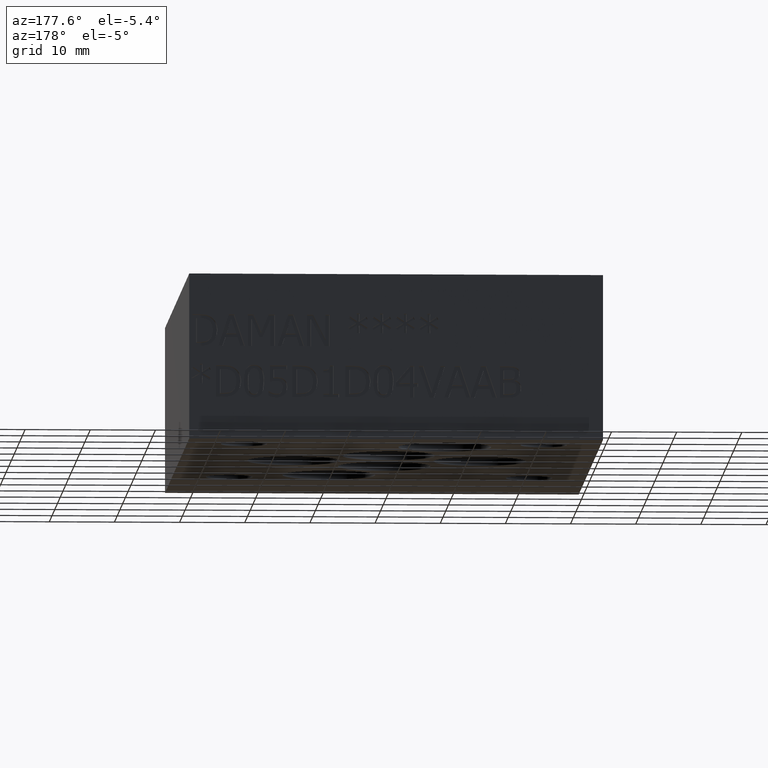
[diagram: clean part render]
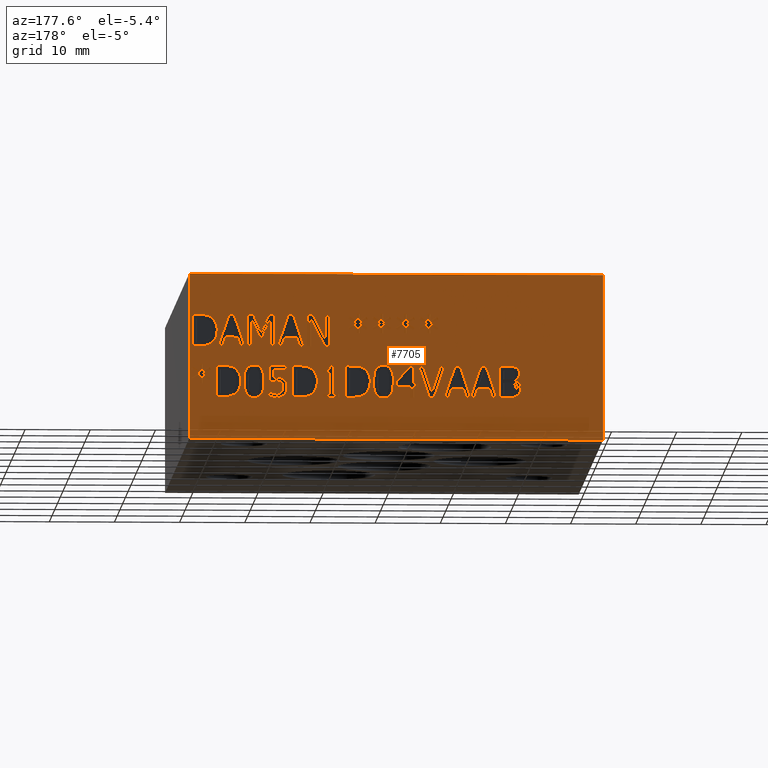
[diagram: same view with one face highlighted and labeled with its STEP entity id]
A machine part, auxiliary view. The second image highlights one B-rep face of the part: STEP entity #7705.
In plain terms, the highlighted planar face has unit normal (0, 1, 0).
Its self-contained STEP definition (entity closure, byte-faithful):
#157=B_SPLINE_CURVE_WITH_KNOTS('',2,(#10240,#10241,#10242,#10243),
 .UNSPECIFIED.,.F.,.F.,(3,1,3),(0.,1.,2.),.UNSPECIFIED.);
#159=B_SPLINE_CURVE_WITH_KNOTS('',2,(#10261,#10262,#10263,#10264),
 .UNSPECIFIED.,.F.,.F.,(3,1,3),(0.,1.,2.),.UNSPECIFIED.);
#161=B_SPLINE_CURVE_WITH_KNOTS('',2,(#10280,#10281,#10282,#10283),
 .UNSPECIFIED.,.F.,.F.,(3,1,3),(0.,1.,2.),.UNSPECIFIED.);
#163=B_SPLINE_CURVE_WITH_KNOTS('',2,(#10298,#10299,#10300,#10301),
 .UNSPECIFIED.,.F.,.F.,(3,1,3),(0.,1.,2.),.UNSPECIFIED.);
#173=B_SPLINE_CURVE_WITH_KNOTS('',2,(#10411,#10412,#10413,#10414),
 .UNSPECIFIED.,.F.,.F.,(3,1,3),(0.,1.,2.),.UNSPECIFIED.);
#175=B_SPLINE_CURVE_WITH_KNOTS('',2,(#10432,#10433,#10434,#10435),
 .UNSPECIFIED.,.F.,.F.,(3,1,3),(0.,1.,2.),.UNSPECIFIED.);
#177=B_SPLINE_CURVE_WITH_KNOTS('',2,(#10469,#10470,#10471,#10472),
 .UNSPECIFIED.,.F.,.F.,(3,1,3),(0.,1.,2.),.UNSPECIFIED.);
#179=B_SPLINE_CURVE_WITH_KNOTS('',2,(#10487,#10488,#10489,#10490),
 .UNSPECIFIED.,.F.,.F.,(3,1,3),(0.,1.,2.),.UNSPECIFIED.);
#181=B_SPLINE_CURVE_WITH_KNOTS('',2,(#10506,#10507,#10508,#10509),
 .UNSPECIFIED.,.F.,.F.,(3,1,3),(0.,1.,2.),.UNSPECIFIED.);
#183=B_SPLINE_CURVE_WITH_KNOTS('',2,(#10527,#10528,#10529,#10530),
 .UNSPECIFIED.,.F.,.F.,(3,1,3),(0.,1.,2.),.UNSPECIFIED.);
#185=B_SPLINE_CURVE_WITH_KNOTS('',2,(#10546,#10547,#10548,#10549),
 .UNSPECIFIED.,.F.,.F.,(3,1,3),(0.,1.,2.),.UNSPECIFIED.);
#187=B_SPLINE_CURVE_WITH_KNOTS('',2,(#10595,#10596,#10597,#10598),
 .UNSPECIFIED.,.F.,.F.,(3,1,3),(0.,1.,2.),.UNSPECIFIED.);
#189=B_SPLINE_CURVE_WITH_KNOTS('',2,(#10614,#10615,#10616,#10617),
 .UNSPECIFIED.,.F.,.F.,(3,1,3),(0.,1.,2.),.UNSPECIFIED.);
#191=B_SPLINE_CURVE_WITH_KNOTS('',2,(#10633,#10634,#10635,#10636),
 .UNSPECIFIED.,.F.,.F.,(3,1,3),(0.,1.,2.),.UNSPECIFIED.);
#193=B_SPLINE_CURVE_WITH_KNOTS('',2,(#10652,#10653,#10654,#10655),
 .UNSPECIFIED.,.F.,.F.,(3,1,3),(0.,1.,2.),.UNSPECIFIED.);
#195=B_SPLINE_CURVE_WITH_KNOTS('',2,(#10671,#10672,#10673,#10674),
 .UNSPECIFIED.,.F.,.F.,(3,1,3),(0.,1.,2.),.UNSPECIFIED.);
#197=B_SPLINE_CURVE_WITH_KNOTS('',2,(#10690,#10691,#10692,#10693),
 .UNSPECIFIED.,.F.,.F.,(3,1,3),(0.,1.,2.),.UNSPECIFIED.);
#199=B_SPLINE_CURVE_WITH_KNOTS('',2,(#10709,#10710,#10711,#10712),
 .UNSPECIFIED.,.F.,.F.,(3,1,3),(0.,1.,2.),.UNSPECIFIED.);
#201=B_SPLINE_CURVE_WITH_KNOTS('',2,(#10740,#10741,#10742,#10743),
 .UNSPECIFIED.,.F.,.F.,(3,1,3),(0.,1.,2.),.UNSPECIFIED.);
#203=B_SPLINE_CURVE_WITH_KNOTS('',2,(#10759,#10760,#10761,#10762),
 .UNSPECIFIED.,.F.,.F.,(3,1,3),(0.,1.,2.),.UNSPECIFIED.);
#205=B_SPLINE_CURVE_WITH_KNOTS('',2,(#10777,#10778,#10779,#10780),
 .UNSPECIFIED.,.F.,.F.,(3,1,3),(0.,1.,2.),.UNSPECIFIED.);
#223=B_SPLINE_CURVE_WITH_KNOTS('',2,(#10948,#10949,#10950,#10951),
 .UNSPECIFIED.,.F.,.F.,(3,1,3),(0.,1.,2.),.UNSPECIFIED.);
#225=B_SPLINE_CURVE_WITH_KNOTS('',2,(#10969,#10970,#10971,#10972),
 .UNSPECIFIED.,.F.,.F.,(3,1,3),(0.,1.,2.),.UNSPECIFIED.);
#227=B_SPLINE_CURVE_WITH_KNOTS('',2,(#10988,#10989,#10990,#10991),
 .UNSPECIFIED.,.F.,.F.,(3,1,3),(0.,1.,2.),.UNSPECIFIED.);
#229=B_SPLINE_CURVE_WITH_KNOTS('',2,(#11006,#11007,#11008,#11009),
 .UNSPECIFIED.,.F.,.F.,(3,1,3),(0.,1.,2.),.UNSPECIFIED.);
#239=B_SPLINE_CURVE_WITH_KNOTS('',2,(#11119,#11120,#11121,#11122),
 .UNSPECIFIED.,.F.,.F.,(3,1,3),(0.,1.,2.),.UNSPECIFIED.);
#241=B_SPLINE_CURVE_WITH_KNOTS('',2,(#11140,#11141,#11142,#11143),
 .UNSPECIFIED.,.F.,.F.,(3,1,3),(0.,1.,2.),.UNSPECIFIED.);
#243=B_SPLINE_CURVE_WITH_KNOTS('',2,(#11177,#11178,#11179,#11180),
 .UNSPECIFIED.,.F.,.F.,(3,1,3),(0.,1.,2.),.UNSPECIFIED.);
#245=B_SPLINE_CURVE_WITH_KNOTS('',2,(#11195,#11196,#11197,#11198),
 .UNSPECIFIED.,.F.,.F.,(3,1,3),(0.,1.,2.),.UNSPECIFIED.);
#255=B_SPLINE_CURVE_WITH_KNOTS('',2,(#11417,#11418,#11419,#11420),
 .UNSPECIFIED.,.F.,.F.,(3,1,3),(0.,1.,2.),.UNSPECIFIED.);
#257=B_SPLINE_CURVE_WITH_KNOTS('',2,(#11438,#11439,#11440,#11441),
 .UNSPECIFIED.,.F.,.F.,(3,1,3),(0.,1.,2.),.UNSPECIFIED.);
#259=B_SPLINE_CURVE_WITH_KNOTS('',2,(#11475,#11476,#11477,#11478),
 .UNSPECIFIED.,.F.,.F.,(3,1,3),(0.,1.,2.),.UNSPECIFIED.);
#261=B_SPLINE_CURVE_WITH_KNOTS('',2,(#11493,#11494,#11495,#11496),
 .UNSPECIFIED.,.F.,.F.,(3,1,3),(0.,1.,2.),.UNSPECIFIED.);
#263=B_SPLINE_CURVE_WITH_KNOTS('',2,(#11538,#11539,#11540,#11541),
 .UNSPECIFIED.,.F.,.F.,(3,1,3),(0.,1.,2.),.UNSPECIFIED.);
#281=B_SPLINE_CURVE_WITH_KNOTS('',2,(#11907,#11908,#11909,#11910),
 .UNSPECIFIED.,.F.,.F.,(3,1,3),(0.,1.,2.),.UNSPECIFIED.);
#283=B_SPLINE_CURVE_WITH_KNOTS('',2,(#11934,#11935,#11936,#11937),
 .UNSPECIFIED.,.F.,.F.,(3,1,3),(0.,1.,2.),.UNSPECIFIED.);
#285=B_SPLINE_CURVE_WITH_KNOTS('',2,(#11953,#11954,#11955,#11956),
 .UNSPECIFIED.,.F.,.F.,(3,1,3),(0.,1.,2.),.UNSPECIFIED.);
#287=B_SPLINE_CURVE_WITH_KNOTS('',2,(#11972,#11973,#11974,#11975),
 .UNSPECIFIED.,.F.,.F.,(3,1,3),(0.,1.,2.),.UNSPECIFIED.);
#289=B_SPLINE_CURVE_WITH_KNOTS('',2,(#12009,#12010,#12011,#12012),
 .UNSPECIFIED.,.F.,.F.,(3,1,3),(0.,1.,2.),.UNSPECIFIED.);
#291=B_SPLINE_CURVE_WITH_KNOTS('',2,(#12027,#12028,#12029,#12030),
 .UNSPECIFIED.,.F.,.F.,(3,1,3),(0.,1.,2.),.UNSPECIFIED.);
#293=B_SPLINE_CURVE_WITH_KNOTS('',2,(#12155,#12156,#12157,#12158),
 .UNSPECIFIED.,.F.,.F.,(3,1,3),(0.,1.,2.),.UNSPECIFIED.);
#294=B_SPLINE_CURVE_WITH_KNOTS('',2,(#12160,#12161,#12162,#12163),
 .UNSPECIFIED.,.F.,.F.,(3,1,3),(0.,1.,2.),.UNSPECIFIED.);
#295=B_SPLINE_CURVE_WITH_KNOTS('',2,(#12165,#12166,#12167,#12168),
 .UNSPECIFIED.,.F.,.F.,(3,1,3),(0.,1.,2.),.UNSPECIFIED.);
#296=B_SPLINE_CURVE_WITH_KNOTS('',2,(#12175,#12176,#12177,#12178),
 .UNSPECIFIED.,.F.,.F.,(3,1,3),(0.,1.,2.),.UNSPECIFIED.);
#403=FACE_BOUND('',#1052,.T.);
#404=FACE_BOUND('',#1053,.T.);
#405=FACE_BOUND('',#1054,.T.);
#406=FACE_BOUND('',#1055,.T.);
#407=FACE_BOUND('',#1056,.T.);
#408=FACE_BOUND('',#1057,.T.);
#409=FACE_BOUND('',#1058,.T.);
#410=FACE_BOUND('',#1059,.T.);
#411=FACE_BOUND('',#1060,.T.);
#412=FACE_BOUND('',#1061,.T.);
#413=FACE_BOUND('',#1062,.T.);
#414=FACE_BOUND('',#1063,.T.);
#415=FACE_BOUND('',#1064,.T.);
#416=FACE_BOUND('',#1065,.T.);
#417=FACE_BOUND('',#1066,.T.);
#418=FACE_BOUND('',#1067,.T.);
#419=FACE_BOUND('',#1068,.T.);
#420=FACE_BOUND('',#1069,.T.);
#421=FACE_BOUND('',#1070,.T.);
#422=FACE_BOUND('',#1071,.T.);
#423=FACE_BOUND('',#1072,.T.);
#643=FACE_OUTER_BOUND('',#1051,.T.);
#1051=EDGE_LOOP('',(#5659,#5660,#5661,#5662));
#1052=EDGE_LOOP('',(#5663,#5664,#5665,#5666,#5667,#5668,#5669));
#1053=EDGE_LOOP('',(#5670,#5671,#5672,#5673,#5674,#5675,#5676,#5677,#5678,
#5679,#5680));
#1054=EDGE_LOOP('',(#5681,#5682,#5683,#5684));
#1055=EDGE_LOOP('',(#5685,#5686,#5687,#5688,#5689,#5690,#5691));
#1056=EDGE_LOOP('',(#5692,#5693,#5694,#5695,#5696,#5697,#5698,#5699,#5700,
#5701,#5702,#5703,#5704,#5705,#5706,#5707,#5708,#5709,#5710,#5711));
#1057=EDGE_LOOP('',(#5712,#5713,#5714,#5715));
#1058=EDGE_LOOP('',(#5716,#5717,#5718,#5719,#5720,#5721,#5722));
#1059=EDGE_LOOP('',(#5723,#5724,#5725,#5726,#5727,#5728,#5729,#5730,#5731,
#5732,#5733,#5734,#5735,#5736,#5737,#5738,#5739,#5740));
#1060=EDGE_LOOP('',(#5741,#5742,#5743,#5744,#5745,#5746,#5747));
#1061=EDGE_LOOP('',(#5748,#5749,#5750,#5751,#5752,#5753,#5754,#5755,#5756,
#5757,#5758));
#1062=EDGE_LOOP('',(#5759,#5760,#5761,#5762,#5763,#5764,#5765,#5766,#5767,
#5768,#5769,#5770,#5771,#5772,#5773));
#1063=EDGE_LOOP('',(#5774,#5775,#5776,#5777,#5778,#5779,#5780,#5781,#5782,
#5783));
#1064=EDGE_LOOP('',(#5784,#5785,#5786,#5787,#5788,#5789,#5790,#5791,#5792,
#5793,#5794,#5795,#5796,#5797,#5798,#5799,#5800,#5801));
#1065=EDGE_LOOP('',(#5802,#5803,#5804,#5805,#5806,#5807,#5808,#5809,#5810,
#5811,#5812,#5813,#5814,#5815,#5816,#5817,#5818,#5819));
#1066=EDGE_LOOP('',(#5820,#5821,#5822,#5823,#5824,#5825,#5826,#5827,#5828,
#5829));
#1067=EDGE_LOOP('',(#5830,#5831,#5832,#5833,#5834,#5835,#5836,#5837));
#1068=EDGE_LOOP('',(#5838,#5839,#5840,#5841,#5842,#5843,#5844));
#1069=EDGE_LOOP('',(#5845,#5846,#5847,#5848,#5849,#5850,#5851,#5852));
#1070=EDGE_LOOP('',(#5853,#5854,#5855,#5856,#5857,#5858,#5859,#5860,#5861,
#5862,#5863,#5864,#5865));
#1071=EDGE_LOOP('',(#5866,#5867,#5868,#5869,#5870,#5871,#5872,#5873,#5874,
#5875,#5876,#5877,#5878,#5879,#5880,#5881,#5882,#5883));
#1072=EDGE_LOOP('',(#5884,#5885,#5886,#5887,#5888,#5889,#5890,#5891,#5892,
#5893,#5894,#5895,#5896,#5897,#5898,#5899,#5900,#5901));
#1303=LINE('',#9953,#2123);
#1307=LINE('',#9961,#2127);
#1310=LINE('',#9967,#2130);
#1313=LINE('',#9973,#2133);
#1316=LINE('',#9979,#2136);
#1319=LINE('',#9985,#2139);
#1322=LINE('',#9990,#2142);
#1333=LINE('',#10014,#2153);
#1337=LINE('',#10022,#2157);
#1340=LINE('',#10028,#2160);
#1343=LINE('',#10034,#2163);
#1346=LINE('',#10040,#2166);
#1349=LINE('',#10046,#2169);
#1352=LINE('',#10052,#2172);
#1355=LINE('',#10058,#2175);
#1358=LINE('',#10064,#2178);
#1361=LINE('',#10070,#2181);
#1364=LINE('',#10075,#2184);
#1394=LINE('',#10444,#2214);
#1397=LINE('',#10450,#2217);
#1400=LINE('',#10456,#2220);
#1408=LINE('',#10558,#2228);
#1411=LINE('',#10564,#2231);
#1414=LINE('',#10570,#2234);
#1417=LINE('',#10576,#2237);
#1420=LINE('',#10582,#2240);
#1430=LINE('',#10721,#2250);
#1433=LINE('',#10727,#2253);
#1466=LINE('',#11152,#2286);
#1469=LINE('',#11158,#2289);
#1472=LINE('',#11164,#2292);
#1476=LINE('',#11207,#2296);
#1480=LINE('',#11215,#2300);
#1483=LINE('',#11221,#2303);
#1486=LINE('',#11227,#2306);
#1489=LINE('',#11233,#2309);
#1492=LINE('',#11239,#2312);
#1495=LINE('',#11245,#2315);
#1498=LINE('',#11251,#2318);
#1501=LINE('',#11257,#2321);
#1504=LINE('',#11263,#2324);
#1507=LINE('',#11269,#2327);
#1510=LINE('',#11275,#2330);
#1513=LINE('',#11281,#2333);
#1516=LINE('',#11287,#2336);
#1519=LINE('',#11293,#2339);
#1522=LINE('',#11299,#2342);
#1525=LINE('',#11305,#2345);
#1528=LINE('',#11310,#2348);
#1546=LINE('',#11450,#2366);
#1549=LINE('',#11456,#2369);
#1552=LINE('',#11462,#2372);
#1556=LINE('',#11505,#2376);
#1560=LINE('',#11513,#2380);
#1563=LINE('',#11519,#2383);
#1566=LINE('',#11525,#2386);
#1570=LINE('',#11550,#2390);
#1573=LINE('',#11556,#2393);
#1576=LINE('',#11562,#2396);
#1579=LINE('',#11568,#2399);
#1582=LINE('',#11574,#2402);
#1585=LINE('',#11579,#2405);
#1599=LINE('',#11608,#2419);
#1600=LINE('',#11612,#2420);
#1604=LINE('',#11620,#2424);
#1607=LINE('',#11626,#2427);
#1610=LINE('',#11632,#2430);
#1613=LINE('',#11638,#2433);
#1616=LINE('',#11643,#2436);
#1618=LINE('',#11647,#2438);
#1630=LINE('',#11672,#2450);
#1634=LINE('',#11680,#2454);
#1637=LINE('',#11686,#2457);
#1640=LINE('',#11691,#2460);
#1642=LINE('',#11695,#2462);
#1645=LINE('',#11701,#2465);
#1648=LINE('',#11706,#2468);
#1678=LINE('',#11921,#2498);
#1684=LINE('',#11984,#2504);
#1687=LINE('',#11990,#2507);
#1690=LINE('',#11996,#2510);
#1694=LINE('',#12039,#2514);
#1695=LINE('',#12041,#2515);
#1696=LINE('',#12043,#2516);
#1697=LINE('',#12044,#2517);
#1698=LINE('',#12047,#2518);
#1699=LINE('',#12049,#2519);
#1700=LINE('',#12051,#2520);
#1701=LINE('',#12053,#2521);
#1702=LINE('',#12055,#2522);
#1703=LINE('',#12057,#2523);
#1704=LINE('',#12059,#2524);
#1705=LINE('',#12061,#2525);
#1706=LINE('',#12063,#2526);
#1707=LINE('',#12065,#2527);
#1708=LINE('',#12067,#2528);
#1709=LINE('',#12069,#2529);
#1710=LINE('',#12071,#2530);
#1711=LINE('',#12073,#2531);
#1712=LINE('',#12075,#2532);
#1713=LINE('',#12077,#2533);
#1714=LINE('',#12079,#2534);
#1715=LINE('',#12080,#2535);
#1716=LINE('',#12083,#2536);
#1717=LINE('',#12085,#2537);
#1718=LINE('',#12087,#2538);
#1719=LINE('',#12089,#2539);
#1720=LINE('',#12091,#2540);
#1721=LINE('',#12093,#2541);
#1722=LINE('',#12095,#2542);
#1723=LINE('',#12097,#2543);
#1724=LINE('',#12099,#2544);
#1725=LINE('',#12101,#2545);
#1726=LINE('',#12103,#2546);
#1727=LINE('',#12105,#2547);
#1728=LINE('',#12107,#2548);
#1729=LINE('',#12109,#2549);
#1730=LINE('',#12111,#2550);
#1731=LINE('',#12113,#2551);
#1732=LINE('',#12115,#2552);
#1733=LINE('',#12116,#2553);
#1734=LINE('',#12119,#2554);
#1735=LINE('',#12121,#2555);
#1736=LINE('',#12123,#2556);
#1737=LINE('',#12125,#2557);
#1738=LINE('',#12127,#2558);
#1739=LINE('',#12129,#2559);
#1740=LINE('',#12131,#2560);
#1741=LINE('',#12133,#2561);
#1742=LINE('',#12135,#2562);
#1743=LINE('',#12136,#2563);
#1744=LINE('',#12139,#2564);
#1745=LINE('',#12141,#2565);
#1746=LINE('',#12143,#2566);
#1747=LINE('',#12145,#2567);
#1748=LINE('',#12147,#2568);
#1749=LINE('',#12149,#2569);
#1750=LINE('',#12151,#2570);
#1751=LINE('',#12152,#2571);
#1752=LINE('',#12170,#2572);
#1753=LINE('',#12172,#2573);
#1754=LINE('',#12174,#2574);
#1755=LINE('',#12181,#2575);
#1756=LINE('',#12183,#2576);
#1757=LINE('',#12185,#2577);
#1758=LINE('',#12187,#2578);
#1759=LINE('',#12189,#2579);
#1760=LINE('',#12191,#2580);
#1761=LINE('',#12193,#2581);
#1762=LINE('',#12194,#2582);
#1763=LINE('',#12197,#2583);
#1764=LINE('',#12199,#2584);
#1765=LINE('',#12201,#2585);
#1766=LINE('',#12203,#2586);
#1767=LINE('',#12205,#2587);
#1768=LINE('',#12207,#2588);
#1769=LINE('',#12209,#2589);
#1770=LINE('',#12211,#2590);
#1771=LINE('',#12213,#2591);
#1772=LINE('',#12215,#2592);
#1773=LINE('',#12217,#2593);
#1774=LINE('',#12219,#2594);
#1775=LINE('',#12220,#2595);
#1776=LINE('',#12223,#2596);
#1777=LINE('',#12225,#2597);
#1778=LINE('',#12227,#2598);
#1779=LINE('',#12229,#2599);
#1780=LINE('',#12231,#2600);
#1781=LINE('',#12233,#2601);
#1782=LINE('',#12235,#2602);
#1783=LINE('',#12237,#2603);
#1784=LINE('',#12239,#2604);
#1785=LINE('',#12241,#2605);
#1786=LINE('',#12243,#2606);
#1787=LINE('',#12245,#2607);
#1788=LINE('',#12247,#2608);
#1789=LINE('',#12249,#2609);
#1790=LINE('',#12251,#2610);
#1791=LINE('',#12253,#2611);
#1792=LINE('',#12255,#2612);
#1793=LINE('',#12256,#2613);
#1794=LINE('',#12259,#2614);
#1795=LINE('',#12261,#2615);
#1796=LINE('',#12263,#2616);
#1797=LINE('',#12265,#2617);
#1798=LINE('',#12267,#2618);
#1799=LINE('',#12269,#2619);
#1800=LINE('',#12271,#2620);
#1801=LINE('',#12273,#2621);
#1802=LINE('',#12275,#2622);
#1803=LINE('',#12277,#2623);
#1804=LINE('',#12279,#2624);
#1805=LINE('',#12281,#2625);
#1806=LINE('',#12283,#2626);
#1807=LINE('',#12285,#2627);
#1808=LINE('',#12287,#2628);
#1809=LINE('',#12289,#2629);
#1810=LINE('',#12291,#2630);
#1811=LINE('',#12292,#2631);
#2123=VECTOR('',#8329,10.);
#2127=VECTOR('',#8335,10.);
#2130=VECTOR('',#8340,10.);
#2133=VECTOR('',#8345,10.);
#2136=VECTOR('',#8350,10.);
#2139=VECTOR('',#8355,10.);
#2142=VECTOR('',#8360,10.);
#2153=VECTOR('',#8381,10.);
#2157=VECTOR('',#8387,10.);
#2160=VECTOR('',#8392,10.);
#2163=VECTOR('',#8397,10.);
#2166=VECTOR('',#8402,10.);
#2169=VECTOR('',#8407,10.);
#2172=VECTOR('',#8412,10.);
#2175=VECTOR('',#8417,10.);
#2178=VECTOR('',#8422,10.);
#2181=VECTOR('',#8427,10.);
#2184=VECTOR('',#8432,10.);
#2214=VECTOR('',#8474,10.);
#2217=VECTOR('',#8479,10.);
#2220=VECTOR('',#8484,10.);
#2228=VECTOR('',#8496,10.);
#2231=VECTOR('',#8501,10.);
#2234=VECTOR('',#8506,10.);
#2237=VECTOR('',#8511,10.);
#2240=VECTOR('',#8516,10.);
#2250=VECTOR('',#8528,10.);
#2253=VECTOR('',#8533,10.);
#2286=VECTOR('',#8578,10.);
#2289=VECTOR('',#8583,10.);
#2292=VECTOR('',#8588,10.);
#2296=VECTOR('',#8596,10.);
#2300=VECTOR('',#8602,10.);
#2303=VECTOR('',#8607,10.);
#2306=VECTOR('',#8612,10.);
#2309=VECTOR('',#8617,10.);
#2312=VECTOR('',#8622,10.);
#2315=VECTOR('',#8627,10.);
#2318=VECTOR('',#8632,10.);
#2321=VECTOR('',#8637,10.);
#2324=VECTOR('',#8642,10.);
#2327=VECTOR('',#8647,10.);
#2330=VECTOR('',#8652,10.);
#2333=VECTOR('',#8657,10.);
#2336=VECTOR('',#8662,10.);
#2339=VECTOR('',#8667,10.);
#2342=VECTOR('',#8672,10.);
#2345=VECTOR('',#8677,10.);
#2348=VECTOR('',#8682,10.);
#2366=VECTOR('',#8710,10.);
#2369=VECTOR('',#8715,10.);
#2372=VECTOR('',#8720,10.);
#2376=VECTOR('',#8728,10.);
#2380=VECTOR('',#8734,10.);
#2383=VECTOR('',#8739,10.);
#2386=VECTOR('',#8744,10.);
#2390=VECTOR('',#8750,10.);
#2393=VECTOR('',#8755,10.);
#2396=VECTOR('',#8760,10.);
#2399=VECTOR('',#8765,10.);
#2402=VECTOR('',#8770,10.);
#2405=VECTOR('',#8775,10.);
#2419=VECTOR('',#8799,10.);
#2420=VECTOR('',#8802,10.);
#2424=VECTOR('',#8808,10.);
#2427=VECTOR('',#8813,10.);
#2430=VECTOR('',#8818,10.);
#2433=VECTOR('',#8823,10.);
#2436=VECTOR('',#8828,10.);
#2438=VECTOR('',#8832,10.);
#2450=VECTOR('',#8852,10.);
#2454=VECTOR('',#8858,10.);
#2457=VECTOR('',#8863,10.);
#2460=VECTOR('',#8868,10.);
#2462=VECTOR('',#8872,10.);
#2465=VECTOR('',#8877,10.);
#2468=VECTOR('',#8882,10.);
#2498=VECTOR('',#8928,10.);
#2504=VECTOR('',#8936,10.);
#2507=VECTOR('',#8941,10.);
#2510=VECTOR('',#8946,10.);
#2514=VECTOR('',#8954,10.);
#2515=VECTOR('',#8955,10.);
#2516=VECTOR('',#8956,10.);
#2517=VECTOR('',#8957,10.);
#2518=VECTOR('',#8958,10.);
#2519=VECTOR('',#8959,10.);
#2520=VECTOR('',#8960,10.);
#2521=VECTOR('',#8961,10.);
#2522=VECTOR('',#8962,10.);
#2523=VECTOR('',#8963,10.);
#2524=VECTOR('',#8964,10.);
#2525=VECTOR('',#8965,10.);
#2526=VECTOR('',#8966,10.);
#2527=VECTOR('',#8967,10.);
#2528=VECTOR('',#8968,10.);
#2529=VECTOR('',#8969,10.);
#2530=VECTOR('',#8970,10.);
#2531=VECTOR('',#8971,10.);
#2532=VECTOR('',#8972,10.);
#2533=VECTOR('',#8973,10.);
#2534=VECTOR('',#8974,10.);
#2535=VECTOR('',#8975,10.);
#2536=VECTOR('',#8976,10.);
#2537=VECTOR('',#8977,10.);
#2538=VECTOR('',#8978,10.);
#2539=VECTOR('',#8979,10.);
#2540=VECTOR('',#8980,10.);
#2541=VECTOR('',#8981,10.);
#2542=VECTOR('',#8982,10.);
#2543=VECTOR('',#8983,10.);
#2544=VECTOR('',#8984,10.);
#2545=VECTOR('',#8985,10.);
#2546=VECTOR('',#8986,10.);
#2547=VECTOR('',#8987,10.);
#2548=VECTOR('',#8988,10.);
#2549=VECTOR('',#8989,10.);
#2550=VECTOR('',#8990,10.);
#2551=VECTOR('',#8991,10.);
#2552=VECTOR('',#8992,10.);
#2553=VECTOR('',#8993,10.);
#2554=VECTOR('',#8994,10.);
#2555=VECTOR('',#8995,10.);
#2556=VECTOR('',#8996,10.);
#2557=VECTOR('',#8997,10.);
#2558=VECTOR('',#8998,10.);
#2559=VECTOR('',#8999,10.);
#2560=VECTOR('',#9000,10.);
#2561=VECTOR('',#9001,10.);
#2562=VECTOR('',#9002,10.);
#2563=VECTOR('',#9003,10.);
#2564=VECTOR('',#9004,10.);
#2565=VECTOR('',#9005,10.);
#2566=VECTOR('',#9006,10.);
#2567=VECTOR('',#9007,10.);
#2568=VECTOR('',#9008,10.);
#2569=VECTOR('',#9009,10.);
#2570=VECTOR('',#9010,10.);
#2571=VECTOR('',#9011,10.);
#2572=VECTOR('',#9012,10.);
#2573=VECTOR('',#9013,10.);
#2574=VECTOR('',#9014,10.);
#2575=VECTOR('',#9015,10.);
#2576=VECTOR('',#9016,10.);
#2577=VECTOR('',#9017,10.);
#2578=VECTOR('',#9018,10.);
#2579=VECTOR('',#9019,10.);
#2580=VECTOR('',#9020,10.);
#2581=VECTOR('',#9021,10.);
#2582=VECTOR('',#9022,10.);
#2583=VECTOR('',#9023,10.);
#2584=VECTOR('',#9024,10.);
#2585=VECTOR('',#9025,10.);
#2586=VECTOR('',#9026,10.);
#2587=VECTOR('',#9027,10.);
#2588=VECTOR('',#9028,10.);
#2589=VECTOR('',#9029,10.);
#2590=VECTOR('',#9030,10.);
#2591=VECTOR('',#9031,10.);
#2592=VECTOR('',#9032,10.);
#2593=VECTOR('',#9033,10.);
#2594=VECTOR('',#9034,10.);
#2595=VECTOR('',#9035,10.);
#2596=VECTOR('',#9036,10.);
#2597=VECTOR('',#9037,10.);
#2598=VECTOR('',#9038,10.);
#2599=VECTOR('',#9039,10.);
#2600=VECTOR('',#9040,10.);
#2601=VECTOR('',#9041,10.);
#2602=VECTOR('',#9042,10.);
#2603=VECTOR('',#9043,10.);
#2604=VECTOR('',#9044,10.);
#2605=VECTOR('',#9045,10.);
#2606=VECTOR('',#9046,10.);
#2607=VECTOR('',#9047,10.);
#2608=VECTOR('',#9048,10.);
#2609=VECTOR('',#9049,10.);
#2610=VECTOR('',#9050,10.);
#2611=VECTOR('',#9051,10.);
#2612=VECTOR('',#9052,10.);
#2613=VECTOR('',#9053,10.);
#2614=VECTOR('',#9054,10.);
#2615=VECTOR('',#9055,10.);
#2616=VECTOR('',#9056,10.);
#2617=VECTOR('',#9057,10.);
#2618=VECTOR('',#9058,10.);
#2619=VECTOR('',#9059,10.);
#2620=VECTOR('',#9060,10.);
#2621=VECTOR('',#9061,10.);
#2622=VECTOR('',#9062,10.);
#2623=VECTOR('',#9063,10.);
#2624=VECTOR('',#9064,10.);
#2625=VECTOR('',#9065,10.);
#2626=VECTOR('',#9066,10.);
#2627=VECTOR('',#9067,10.);
#2628=VECTOR('',#9068,10.);
#2629=VECTOR('',#9069,10.);
#2630=VECTOR('',#9070,10.);
#2631=VECTOR('',#9071,10.);
#2943=VERTEX_POINT('',#9951);
#2944=VERTEX_POINT('',#9952);
#2947=VERTEX_POINT('',#9960);
#2949=VERTEX_POINT('',#9966);
#2951=VERTEX_POINT('',#9972);
#2953=VERTEX_POINT('',#9978);
#2955=VERTEX_POINT('',#9984);
#2963=VERTEX_POINT('',#10012);
#2964=VERTEX_POINT('',#10013);
#2967=VERTEX_POINT('',#10021);
#2969=VERTEX_POINT('',#10027);
#2971=VERTEX_POINT('',#10033);
#2973=VERTEX_POINT('',#10039);
#2975=VERTEX_POINT('',#10045);
#2977=VERTEX_POINT('',#10051);
#2979=VERTEX_POINT('',#10057);
#2981=VERTEX_POINT('',#10063);
#2983=VERTEX_POINT('',#10069);
#3001=VERTEX_POINT('',#10238);
#3002=VERTEX_POINT('',#10239);
#3005=VERTEX_POINT('',#10260);
#3007=VERTEX_POINT('',#10279);
#3023=VERTEX_POINT('',#10409);
#3024=VERTEX_POINT('',#10410);
#3027=VERTEX_POINT('',#10431);
#3029=VERTEX_POINT('',#10443);
#3031=VERTEX_POINT('',#10449);
#3033=VERTEX_POINT('',#10455);
#3035=VERTEX_POINT('',#10468);
#3037=VERTEX_POINT('',#10504);
#3038=VERTEX_POINT('',#10505);
#3041=VERTEX_POINT('',#10526);
#3043=VERTEX_POINT('',#10545);
#3045=VERTEX_POINT('',#10557);
#3047=VERTEX_POINT('',#10563);
#3049=VERTEX_POINT('',#10569);
#3051=VERTEX_POINT('',#10575);
#3053=VERTEX_POINT('',#10581);
#3055=VERTEX_POINT('',#10594);
#3057=VERTEX_POINT('',#10613);
#3059=VERTEX_POINT('',#10632);
#3061=VERTEX_POINT('',#10651);
#3063=VERTEX_POINT('',#10670);
#3065=VERTEX_POINT('',#10689);
#3067=VERTEX_POINT('',#10708);
#3069=VERTEX_POINT('',#10720);
#3071=VERTEX_POINT('',#10726);
#3073=VERTEX_POINT('',#10739);
#3075=VERTEX_POINT('',#10758);
#3093=VERTEX_POINT('',#10946);
#3094=VERTEX_POINT('',#10947);
#3097=VERTEX_POINT('',#10968);
#3099=VERTEX_POINT('',#10987);
#3115=VERTEX_POINT('',#11117);
#3116=VERTEX_POINT('',#11118);
#3119=VERTEX_POINT('',#11139);
#3121=VERTEX_POINT('',#11151);
#3123=VERTEX_POINT('',#11157);
#3125=VERTEX_POINT('',#11163);
#3127=VERTEX_POINT('',#11176);
#3129=VERTEX_POINT('',#11205);
#3130=VERTEX_POINT('',#11206);
#3133=VERTEX_POINT('',#11214);
#3135=VERTEX_POINT('',#11220);
#3137=VERTEX_POINT('',#11226);
#3139=VERTEX_POINT('',#11232);
#3141=VERTEX_POINT('',#11238);
#3143=VERTEX_POINT('',#11244);
#3145=VERTEX_POINT('',#11250);
#3147=VERTEX_POINT('',#11256);
#3149=VERTEX_POINT('',#11262);
#3151=VERTEX_POINT('',#11268);
#3153=VERTEX_POINT('',#11274);
#3155=VERTEX_POINT('',#11280);
#3157=VERTEX_POINT('',#11286);
#3159=VERTEX_POINT('',#11292);
#3161=VERTEX_POINT('',#11298);
#3163=VERTEX_POINT('',#11304);
#3179=VERTEX_POINT('',#11415);
#3180=VERTEX_POINT('',#11416);
#3183=VERTEX_POINT('',#11437);
#3185=VERTEX_POINT('',#11449);
#3187=VERTEX_POINT('',#11455);
#3189=VERTEX_POINT('',#11461);
#3191=VERTEX_POINT('',#11474);
#3193=VERTEX_POINT('',#11503);
#3194=VERTEX_POINT('',#11504);
#3197=VERTEX_POINT('',#11512);
#3199=VERTEX_POINT('',#11518);
#3201=VERTEX_POINT('',#11524);
#3203=VERTEX_POINT('',#11537);
#3205=VERTEX_POINT('',#11549);
#3207=VERTEX_POINT('',#11555);
#3209=VERTEX_POINT('',#11561);
#3211=VERTEX_POINT('',#11567);
#3213=VERTEX_POINT('',#11573);
#3221=VERTEX_POINT('',#11601);
#3224=VERTEX_POINT('',#11606);
#3225=VERTEX_POINT('',#11610);
#3226=VERTEX_POINT('',#11611);
#3229=VERTEX_POINT('',#11619);
#3231=VERTEX_POINT('',#11625);
#3233=VERTEX_POINT('',#11631);
#3235=VERTEX_POINT('',#11637);
#3237=VERTEX_POINT('',#11646);
#3245=VERTEX_POINT('',#11670);
#3246=VERTEX_POINT('',#11671);
#3249=VERTEX_POINT('',#11679);
#3251=VERTEX_POINT('',#11685);
#3253=VERTEX_POINT('',#11694);
#3255=VERTEX_POINT('',#11700);
#3285=VERTEX_POINT('',#11905);
#3286=VERTEX_POINT('',#11906);
#3289=VERTEX_POINT('',#11920);
#3291=VERTEX_POINT('',#11933);
#3293=VERTEX_POINT('',#11952);
#3295=VERTEX_POINT('',#11971);
#3297=VERTEX_POINT('',#11983);
#3299=VERTEX_POINT('',#11989);
#3301=VERTEX_POINT('',#11995);
#3303=VERTEX_POINT('',#12008);
#3305=VERTEX_POINT('',#12037);
#3306=VERTEX_POINT('',#12038);
#3307=VERTEX_POINT('',#12040);
#3308=VERTEX_POINT('',#12042);
#3309=VERTEX_POINT('',#12045);
#3310=VERTEX_POINT('',#12046);
#3311=VERTEX_POINT('',#12048);
#3312=VERTEX_POINT('',#12050);
#3313=VERTEX_POINT('',#12052);
#3314=VERTEX_POINT('',#12054);
#3315=VERTEX_POINT('',#12056);
#3316=VERTEX_POINT('',#12058);
#3317=VERTEX_POINT('',#12060);
#3318=VERTEX_POINT('',#12062);
#3319=VERTEX_POINT('',#12064);
#3320=VERTEX_POINT('',#12066);
#3321=VERTEX_POINT('',#12068);
#3322=VERTEX_POINT('',#12070);
#3323=VERTEX_POINT('',#12072);
#3324=VERTEX_POINT('',#12074);
#3325=VERTEX_POINT('',#12076);
#3326=VERTEX_POINT('',#12078);
#3327=VERTEX_POINT('',#12081);
#3328=VERTEX_POINT('',#12082);
#3329=VERTEX_POINT('',#12084);
#3330=VERTEX_POINT('',#12086);
#3331=VERTEX_POINT('',#12088);
#3332=VERTEX_POINT('',#12090);
#3333=VERTEX_POINT('',#12092);
#3334=VERTEX_POINT('',#12094);
#3335=VERTEX_POINT('',#12096);
#3336=VERTEX_POINT('',#12098);
#3337=VERTEX_POINT('',#12100);
#3338=VERTEX_POINT('',#12102);
#3339=VERTEX_POINT('',#12104);
#3340=VERTEX_POINT('',#12106);
#3341=VERTEX_POINT('',#12108);
#3342=VERTEX_POINT('',#12110);
#3343=VERTEX_POINT('',#12112);
#3344=VERTEX_POINT('',#12114);
#3345=VERTEX_POINT('',#12117);
#3346=VERTEX_POINT('',#12118);
#3347=VERTEX_POINT('',#12120);
#3348=VERTEX_POINT('',#12122);
#3349=VERTEX_POINT('',#12124);
#3350=VERTEX_POINT('',#12126);
#3351=VERTEX_POINT('',#12128);
#3352=VERTEX_POINT('',#12130);
#3353=VERTEX_POINT('',#12132);
#3354=VERTEX_POINT('',#12134);
#3355=VERTEX_POINT('',#12137);
#3356=VERTEX_POINT('',#12138);
#3357=VERTEX_POINT('',#12140);
#3358=VERTEX_POINT('',#12142);
#3359=VERTEX_POINT('',#12144);
#3360=VERTEX_POINT('',#12146);
#3361=VERTEX_POINT('',#12148);
#3362=VERTEX_POINT('',#12150);
#3363=VERTEX_POINT('',#12153);
#3364=VERTEX_POINT('',#12154);
#3365=VERTEX_POINT('',#12159);
#3366=VERTEX_POINT('',#12164);
#3367=VERTEX_POINT('',#12169);
#3368=VERTEX_POINT('',#12171);
#3369=VERTEX_POINT('',#12173);
#3370=VERTEX_POINT('',#12179);
#3371=VERTEX_POINT('',#12180);
#3372=VERTEX_POINT('',#12182);
#3373=VERTEX_POINT('',#12184);
#3374=VERTEX_POINT('',#12186);
#3375=VERTEX_POINT('',#12188);
#3376=VERTEX_POINT('',#12190);
#3377=VERTEX_POINT('',#12192);
#3378=VERTEX_POINT('',#12195);
#3379=VERTEX_POINT('',#12196);
#3380=VERTEX_POINT('',#12198);
#3381=VERTEX_POINT('',#12200);
#3382=VERTEX_POINT('',#12202);
#3383=VERTEX_POINT('',#12204);
#3384=VERTEX_POINT('',#12206);
#3385=VERTEX_POINT('',#12208);
#3386=VERTEX_POINT('',#12210);
#3387=VERTEX_POINT('',#12212);
#3388=VERTEX_POINT('',#12214);
#3389=VERTEX_POINT('',#12216);
#3390=VERTEX_POINT('',#12218);
#3391=VERTEX_POINT('',#12221);
#3392=VERTEX_POINT('',#12222);
#3393=VERTEX_POINT('',#12224);
#3394=VERTEX_POINT('',#12226);
#3395=VERTEX_POINT('',#12228);
#3396=VERTEX_POINT('',#12230);
#3397=VERTEX_POINT('',#12232);
#3398=VERTEX_POINT('',#12234);
#3399=VERTEX_POINT('',#12236);
#3400=VERTEX_POINT('',#12238);
#3401=VERTEX_POINT('',#12240);
#3402=VERTEX_POINT('',#12242);
#3403=VERTEX_POINT('',#12244);
#3404=VERTEX_POINT('',#12246);
#3405=VERTEX_POINT('',#12248);
#3406=VERTEX_POINT('',#12250);
#3407=VERTEX_POINT('',#12252);
#3408=VERTEX_POINT('',#12254);
#3409=VERTEX_POINT('',#12257);
#3410=VERTEX_POINT('',#12258);
#3411=VERTEX_POINT('',#12260);
#3412=VERTEX_POINT('',#12262);
#3413=VERTEX_POINT('',#12264);
#3414=VERTEX_POINT('',#12266);
#3415=VERTEX_POINT('',#12268);
#3416=VERTEX_POINT('',#12270);
#3417=VERTEX_POINT('',#12272);
#3418=VERTEX_POINT('',#12274);
#3419=VERTEX_POINT('',#12276);
#3420=VERTEX_POINT('',#12278);
#3421=VERTEX_POINT('',#12280);
#3422=VERTEX_POINT('',#12282);
#3423=VERTEX_POINT('',#12284);
#3424=VERTEX_POINT('',#12286);
#3425=VERTEX_POINT('',#12288);
#3426=VERTEX_POINT('',#12290);
#3679=EDGE_CURVE('',#2943,#2944,#1303,.T.);
#3683=EDGE_CURVE('',#2947,#2943,#1307,.T.);
#3686=EDGE_CURVE('',#2949,#2947,#1310,.T.);
#3689=EDGE_CURVE('',#2951,#2949,#1313,.T.);
#3692=EDGE_CURVE('',#2953,#2951,#1316,.T.);
#3695=EDGE_CURVE('',#2955,#2953,#1319,.T.);
#3698=EDGE_CURVE('',#2944,#2955,#1322,.T.);
#3709=EDGE_CURVE('',#2963,#2964,#1333,.T.);
#3713=EDGE_CURVE('',#2967,#2963,#1337,.T.);
#3716=EDGE_CURVE('',#2969,#2967,#1340,.T.);
#3719=EDGE_CURVE('',#2971,#2969,#1343,.T.);
#3722=EDGE_CURVE('',#2973,#2971,#1346,.T.);
#3725=EDGE_CURVE('',#2975,#2973,#1349,.T.);
#3728=EDGE_CURVE('',#2977,#2975,#1352,.T.);
#3731=EDGE_CURVE('',#2979,#2977,#1355,.T.);
#3734=EDGE_CURVE('',#2981,#2979,#1358,.T.);
#3737=EDGE_CURVE('',#2983,#2981,#1361,.T.);
#3740=EDGE_CURVE('',#2964,#2983,#1364,.T.);
#3766=EDGE_CURVE('',#3001,#3002,#157,.T.);
#3770=EDGE_CURVE('',#3005,#3001,#159,.T.);
#3773=EDGE_CURVE('',#3007,#3005,#161,.T.);
#3776=EDGE_CURVE('',#3002,#3007,#163,.T.);
#3799=EDGE_CURVE('',#3023,#3024,#173,.T.);
#3803=EDGE_CURVE('',#3027,#3023,#175,.T.);
#3806=EDGE_CURVE('',#3029,#3027,#1394,.T.);
#3809=EDGE_CURVE('',#3031,#3029,#1397,.T.);
#3812=EDGE_CURVE('',#3033,#3031,#1400,.T.);
#3815=EDGE_CURVE('',#3035,#3033,#177,.T.);
#3818=EDGE_CURVE('',#3024,#3035,#179,.T.);
#3820=EDGE_CURVE('',#3037,#3038,#181,.T.);
#3824=EDGE_CURVE('',#3041,#3037,#183,.T.);
#3827=EDGE_CURVE('',#3043,#3041,#185,.T.);
#3830=EDGE_CURVE('',#3045,#3043,#1408,.T.);
#3833=EDGE_CURVE('',#3047,#3045,#1411,.T.);
#3836=EDGE_CURVE('',#3049,#3047,#1414,.T.);
#3839=EDGE_CURVE('',#3051,#3049,#1417,.T.);
#3842=EDGE_CURVE('',#3053,#3051,#1420,.T.);
#3845=EDGE_CURVE('',#3055,#3053,#187,.T.);
#3848=EDGE_CURVE('',#3057,#3055,#189,.T.);
#3851=EDGE_CURVE('',#3059,#3057,#191,.T.);
#3854=EDGE_CURVE('',#3061,#3059,#193,.T.);
#3857=EDGE_CURVE('',#3063,#3061,#195,.T.);
#3860=EDGE_CURVE('',#3065,#3063,#197,.T.);
#3863=EDGE_CURVE('',#3067,#3065,#199,.T.);
#3866=EDGE_CURVE('',#3069,#3067,#1430,.T.);
#3869=EDGE_CURVE('',#3071,#3069,#1433,.T.);
#3872=EDGE_CURVE('',#3073,#3071,#201,.T.);
#3875=EDGE_CURVE('',#3075,#3073,#203,.T.);
#3878=EDGE_CURVE('',#3038,#3075,#205,.T.);
#3904=EDGE_CURVE('',#3093,#3094,#223,.T.);
#3908=EDGE_CURVE('',#3097,#3093,#225,.T.);
#3911=EDGE_CURVE('',#3099,#3097,#227,.T.);
#3914=EDGE_CURVE('',#3094,#3099,#229,.T.);
#3937=EDGE_CURVE('',#3115,#3116,#239,.T.);
#3941=EDGE_CURVE('',#3119,#3115,#241,.T.);
#3944=EDGE_CURVE('',#3121,#3119,#1466,.T.);
#3947=EDGE_CURVE('',#3123,#3121,#1469,.T.);
#3950=EDGE_CURVE('',#3125,#3123,#1472,.T.);
#3953=EDGE_CURVE('',#3127,#3125,#243,.T.);
#3956=EDGE_CURVE('',#3116,#3127,#245,.T.);
#3958=EDGE_CURVE('',#3129,#3130,#1476,.T.);
#3962=EDGE_CURVE('',#3133,#3129,#1480,.T.);
#3965=EDGE_CURVE('',#3135,#3133,#1483,.T.);
#3968=EDGE_CURVE('',#3137,#3135,#1486,.T.);
#3971=EDGE_CURVE('',#3139,#3137,#1489,.T.);
#3974=EDGE_CURVE('',#3141,#3139,#1492,.T.);
#3977=EDGE_CURVE('',#3143,#3141,#1495,.T.);
#3980=EDGE_CURVE('',#3145,#3143,#1498,.T.);
#3983=EDGE_CURVE('',#3147,#3145,#1501,.T.);
#3986=EDGE_CURVE('',#3149,#3147,#1504,.T.);
#3989=EDGE_CURVE('',#3151,#3149,#1507,.T.);
#3992=EDGE_CURVE('',#3153,#3151,#1510,.T.);
#3995=EDGE_CURVE('',#3155,#3153,#1513,.T.);
#3998=EDGE_CURVE('',#3157,#3155,#1516,.T.);
#4001=EDGE_CURVE('',#3159,#3157,#1519,.T.);
#4004=EDGE_CURVE('',#3161,#3159,#1522,.T.);
#4007=EDGE_CURVE('',#3163,#3161,#1525,.T.);
#4010=EDGE_CURVE('',#3130,#3163,#1528,.T.);
#4033=EDGE_CURVE('',#3179,#3180,#255,.T.);
#4037=EDGE_CURVE('',#3183,#3179,#257,.T.);
#4040=EDGE_CURVE('',#3185,#3183,#1546,.T.);
#4043=EDGE_CURVE('',#3187,#3185,#1549,.T.);
#4046=EDGE_CURVE('',#3189,#3187,#1552,.T.);
#4049=EDGE_CURVE('',#3191,#3189,#259,.T.);
#4052=EDGE_CURVE('',#3180,#3191,#261,.T.);
#4054=EDGE_CURVE('',#3193,#3194,#1556,.T.);
#4058=EDGE_CURVE('',#3197,#3193,#1560,.T.);
#4061=EDGE_CURVE('',#3199,#3197,#1563,.T.);
#4064=EDGE_CURVE('',#3201,#3199,#1566,.T.);
#4067=EDGE_CURVE('',#3203,#3201,#263,.T.);
#4070=EDGE_CURVE('',#3205,#3203,#1570,.T.);
#4073=EDGE_CURVE('',#3207,#3205,#1573,.T.);
#4076=EDGE_CURVE('',#3209,#3207,#1576,.T.);
#4079=EDGE_CURVE('',#3211,#3209,#1579,.T.);
#4082=EDGE_CURVE('',#3213,#3211,#1582,.T.);
#4085=EDGE_CURVE('',#3194,#3213,#1585,.T.);
#4099=EDGE_CURVE('',#3221,#3224,#1599,.T.);
#4100=EDGE_CURVE('',#3225,#3226,#1600,.T.);
#4104=EDGE_CURVE('',#3229,#3225,#1604,.T.);
#4107=EDGE_CURVE('',#3231,#3229,#1607,.T.);
#4110=EDGE_CURVE('',#3233,#3231,#1610,.T.);
#4113=EDGE_CURVE('',#3235,#3233,#1613,.T.);
#4116=EDGE_CURVE('',#3224,#3235,#1616,.T.);
#4118=EDGE_CURVE('',#3226,#3237,#1618,.T.);
#4130=EDGE_CURVE('',#3245,#3246,#1630,.T.);
#4134=EDGE_CURVE('',#3249,#3245,#1634,.T.);
#4137=EDGE_CURVE('',#3251,#3249,#1637,.T.);
#4140=EDGE_CURVE('',#3237,#3251,#1640,.T.);
#4142=EDGE_CURVE('',#3253,#3221,#1642,.T.);
#4145=EDGE_CURVE('',#3255,#3253,#1645,.T.);
#4148=EDGE_CURVE('',#3246,#3255,#1648,.T.);
#4192=EDGE_CURVE('',#3285,#3286,#281,.T.);
#4196=EDGE_CURVE('',#3289,#3285,#1678,.T.);
#4199=EDGE_CURVE('',#3291,#3289,#283,.T.);
#4202=EDGE_CURVE('',#3293,#3291,#285,.T.);
#4205=EDGE_CURVE('',#3295,#3293,#287,.T.);
#4208=EDGE_CURVE('',#3297,#3295,#1684,.T.);
#4211=EDGE_CURVE('',#3299,#3297,#1687,.T.);
#4214=EDGE_CURVE('',#3301,#3299,#1690,.T.);
#4217=EDGE_CURVE('',#3303,#3301,#289,.T.);
#4220=EDGE_CURVE('',#3286,#3303,#291,.T.);
#4222=EDGE_CURVE('',#3305,#3306,#1694,.T.);
#4223=EDGE_CURVE('',#3306,#3307,#1695,.T.);
#4224=EDGE_CURVE('',#3308,#3307,#1696,.T.);
#4225=EDGE_CURVE('',#3305,#3308,#1697,.T.);
#4226=EDGE_CURVE('',#3309,#3310,#1698,.T.);
#4227=EDGE_CURVE('',#3310,#3311,#1699,.T.);
#4228=EDGE_CURVE('',#3311,#3312,#1700,.T.);
#4229=EDGE_CURVE('',#3312,#3313,#1701,.T.);
#4230=EDGE_CURVE('',#3313,#3314,#1702,.T.);
#4231=EDGE_CURVE('',#3314,#3315,#1703,.T.);
#4232=EDGE_CURVE('',#3315,#3316,#1704,.T.);
#4233=EDGE_CURVE('',#3316,#3317,#1705,.T.);
#4234=EDGE_CURVE('',#3317,#3318,#1706,.T.);
#4235=EDGE_CURVE('',#3318,#3319,#1707,.T.);
#4236=EDGE_CURVE('',#3319,#3320,#1708,.T.);
#4237=EDGE_CURVE('',#3320,#3321,#1709,.T.);
#4238=EDGE_CURVE('',#3321,#3322,#1710,.T.);
#4239=EDGE_CURVE('',#3322,#3323,#1711,.T.);
#4240=EDGE_CURVE('',#3323,#3324,#1712,.T.);
#4241=EDGE_CURVE('',#3324,#3325,#1713,.T.);
#4242=EDGE_CURVE('',#3325,#3326,#1714,.T.);
#4243=EDGE_CURVE('',#3326,#3309,#1715,.T.);
#4244=EDGE_CURVE('',#3327,#3328,#1716,.T.);
#4245=EDGE_CURVE('',#3328,#3329,#1717,.T.);
#4246=EDGE_CURVE('',#3329,#3330,#1718,.T.);
#4247=EDGE_CURVE('',#3330,#3331,#1719,.T.);
#4248=EDGE_CURVE('',#3331,#3332,#1720,.T.);
#4249=EDGE_CURVE('',#3332,#3333,#1721,.T.);
#4250=EDGE_CURVE('',#3333,#3334,#1722,.T.);
#4251=EDGE_CURVE('',#3334,#3335,#1723,.T.);
#4252=EDGE_CURVE('',#3335,#3336,#1724,.T.);
#4253=EDGE_CURVE('',#3336,#3337,#1725,.T.);
#4254=EDGE_CURVE('',#3337,#3338,#1726,.T.);
#4255=EDGE_CURVE('',#3338,#3339,#1727,.T.);
#4256=EDGE_CURVE('',#3339,#3340,#1728,.T.);
#4257=EDGE_CURVE('',#3340,#3341,#1729,.T.);
#4258=EDGE_CURVE('',#3341,#3342,#1730,.T.);
#4259=EDGE_CURVE('',#3342,#3343,#1731,.T.);
#4260=EDGE_CURVE('',#3343,#3344,#1732,.T.);
#4261=EDGE_CURVE('',#3344,#3327,#1733,.T.);
#4262=EDGE_CURVE('',#3345,#3346,#1734,.T.);
#4263=EDGE_CURVE('',#3346,#3347,#1735,.T.);
#4264=EDGE_CURVE('',#3347,#3348,#1736,.T.);
#4265=EDGE_CURVE('',#3348,#3349,#1737,.T.);
#4266=EDGE_CURVE('',#3349,#3350,#1738,.T.);
#4267=EDGE_CURVE('',#3350,#3351,#1739,.T.);
#4268=EDGE_CURVE('',#3351,#3352,#1740,.T.);
#4269=EDGE_CURVE('',#3352,#3353,#1741,.T.);
#4270=EDGE_CURVE('',#3353,#3354,#1742,.T.);
#4271=EDGE_CURVE('',#3354,#3345,#1743,.T.);
#4272=EDGE_CURVE('',#3355,#3356,#1744,.T.);
#4273=EDGE_CURVE('',#3356,#3357,#1745,.T.);
#4274=EDGE_CURVE('',#3357,#3358,#1746,.T.);
#4275=EDGE_CURVE('',#3358,#3359,#1747,.T.);
#4276=EDGE_CURVE('',#3359,#3360,#1748,.T.);
#4277=EDGE_CURVE('',#3360,#3361,#1749,.T.);
#4278=EDGE_CURVE('',#3361,#3362,#1750,.T.);
#4279=EDGE_CURVE('',#3362,#3355,#1751,.T.);
#4280=EDGE_CURVE('',#3363,#3364,#293,.T.);
#4281=EDGE_CURVE('',#3364,#3365,#294,.T.);
#4282=EDGE_CURVE('',#3365,#3366,#295,.T.);
#4283=EDGE_CURVE('',#3366,#3367,#1752,.T.);
#4284=EDGE_CURVE('',#3367,#3368,#1753,.T.);
#4285=EDGE_CURVE('',#3368,#3369,#1754,.T.);
#4286=EDGE_CURVE('',#3369,#3363,#296,.T.);
#4287=EDGE_CURVE('',#3370,#3371,#1755,.T.);
#4288=EDGE_CURVE('',#3371,#3372,#1756,.T.);
#4289=EDGE_CURVE('',#3372,#3373,#1757,.T.);
#4290=EDGE_CURVE('',#3373,#3374,#1758,.T.);
#4291=EDGE_CURVE('',#3374,#3375,#1759,.T.);
#4292=EDGE_CURVE('',#3375,#3376,#1760,.T.);
#4293=EDGE_CURVE('',#3376,#3377,#1761,.T.);
#4294=EDGE_CURVE('',#3377,#3370,#1762,.T.);
#4295=EDGE_CURVE('',#3378,#3379,#1763,.T.);
#4296=EDGE_CURVE('',#3379,#3380,#1764,.T.);
#4297=EDGE_CURVE('',#3380,#3381,#1765,.T.);
#4298=EDGE_CURVE('',#3381,#3382,#1766,.T.);
#4299=EDGE_CURVE('',#3382,#3383,#1767,.T.);
#4300=EDGE_CURVE('',#3383,#3384,#1768,.T.);
#4301=EDGE_CURVE('',#3384,#3385,#1769,.T.);
#4302=EDGE_CURVE('',#3385,#3386,#1770,.T.);
#4303=EDGE_CURVE('',#3386,#3387,#1771,.T.);
#4304=EDGE_CURVE('',#3387,#3388,#1772,.T.);
#4305=EDGE_CURVE('',#3388,#3389,#1773,.T.);
#4306=EDGE_CURVE('',#3389,#3390,#1774,.T.);
#4307=EDGE_CURVE('',#3390,#3378,#1775,.T.);
#4308=EDGE_CURVE('',#3391,#3392,#1776,.T.);
#4309=EDGE_CURVE('',#3392,#3393,#1777,.T.);
#4310=EDGE_CURVE('',#3393,#3394,#1778,.T.);
#4311=EDGE_CURVE('',#3394,#3395,#1779,.T.);
#4312=EDGE_CURVE('',#3395,#3396,#1780,.T.);
#4313=EDGE_CURVE('',#3396,#3397,#1781,.T.);
#4314=EDGE_CURVE('',#3397,#3398,#1782,.T.);
#4315=EDGE_CURVE('',#3398,#3399,#1783,.T.);
#4316=EDGE_CURVE('',#3399,#3400,#1784,.T.);
#4317=EDGE_CURVE('',#3400,#3401,#1785,.T.);
#4318=EDGE_CURVE('',#3401,#3402,#1786,.T.);
#4319=EDGE_CURVE('',#3402,#3403,#1787,.T.);
#4320=EDGE_CURVE('',#3403,#3404,#1788,.T.);
#4321=EDGE_CURVE('',#3404,#3405,#1789,.T.);
#4322=EDGE_CURVE('',#3405,#3406,#1790,.T.);
#4323=EDGE_CURVE('',#3406,#3407,#1791,.T.);
#4324=EDGE_CURVE('',#3407,#3408,#1792,.T.);
#4325=EDGE_CURVE('',#3408,#3391,#1793,.T.);
#4326=EDGE_CURVE('',#3409,#3410,#1794,.T.);
#4327=EDGE_CURVE('',#3410,#3411,#1795,.T.);
#4328=EDGE_CURVE('',#3411,#3412,#1796,.T.);
#4329=EDGE_CURVE('',#3412,#3413,#1797,.T.);
#4330=EDGE_CURVE('',#3413,#3414,#1798,.T.);
#4331=EDGE_CURVE('',#3414,#3415,#1799,.T.);
#4332=EDGE_CURVE('',#3415,#3416,#1800,.T.);
#4333=EDGE_CURVE('',#3416,#3417,#1801,.T.);
#4334=EDGE_CURVE('',#3417,#3418,#1802,.T.);
#4335=EDGE_CURVE('',#3418,#3419,#1803,.T.);
#4336=EDGE_CURVE('',#3419,#3420,#1804,.T.);
#4337=EDGE_CURVE('',#3420,#3421,#1805,.T.);
#4338=EDGE_CURVE('',#3421,#3422,#1806,.T.);
#4339=EDGE_CURVE('',#3422,#3423,#1807,.T.);
#4340=EDGE_CURVE('',#3423,#3424,#1808,.T.);
#4341=EDGE_CURVE('',#3424,#3425,#1809,.T.);
#4342=EDGE_CURVE('',#3425,#3426,#1810,.T.);
#4343=EDGE_CURVE('',#3426,#3409,#1811,.T.);
#5659=ORIENTED_EDGE('',*,*,#4222,.T.);
#5660=ORIENTED_EDGE('',*,*,#4223,.T.);
#5661=ORIENTED_EDGE('',*,*,#4224,.F.);
#5662=ORIENTED_EDGE('',*,*,#4225,.F.);
#5663=ORIENTED_EDGE('',*,*,#3679,.T.);
#5664=ORIENTED_EDGE('',*,*,#3698,.T.);
#5665=ORIENTED_EDGE('',*,*,#3695,.T.);
#5666=ORIENTED_EDGE('',*,*,#3692,.T.);
#5667=ORIENTED_EDGE('',*,*,#3689,.T.);
#5668=ORIENTED_EDGE('',*,*,#3686,.T.);
#5669=ORIENTED_EDGE('',*,*,#3683,.T.);
#5670=ORIENTED_EDGE('',*,*,#3709,.T.);
#5671=ORIENTED_EDGE('',*,*,#3740,.T.);
#5672=ORIENTED_EDGE('',*,*,#3737,.T.);
#5673=ORIENTED_EDGE('',*,*,#3734,.T.);
#5674=ORIENTED_EDGE('',*,*,#3731,.T.);
#5675=ORIENTED_EDGE('',*,*,#3728,.T.);
#5676=ORIENTED_EDGE('',*,*,#3725,.T.);
#5677=ORIENTED_EDGE('',*,*,#3722,.T.);
#5678=ORIENTED_EDGE('',*,*,#3719,.T.);
#5679=ORIENTED_EDGE('',*,*,#3716,.T.);
#5680=ORIENTED_EDGE('',*,*,#3713,.T.);
#5681=ORIENTED_EDGE('',*,*,#3766,.T.);
#5682=ORIENTED_EDGE('',*,*,#3776,.T.);
#5683=ORIENTED_EDGE('',*,*,#3773,.T.);
#5684=ORIENTED_EDGE('',*,*,#3770,.T.);
#5685=ORIENTED_EDGE('',*,*,#3799,.T.);
#5686=ORIENTED_EDGE('',*,*,#3818,.T.);
#5687=ORIENTED_EDGE('',*,*,#3815,.T.);
#5688=ORIENTED_EDGE('',*,*,#3812,.T.);
#5689=ORIENTED_EDGE('',*,*,#3809,.T.);
#5690=ORIENTED_EDGE('',*,*,#3806,.T.);
#5691=ORIENTED_EDGE('',*,*,#3803,.T.);
#5692=ORIENTED_EDGE('',*,*,#3820,.T.);
#5693=ORIENTED_EDGE('',*,*,#3878,.T.);
#5694=ORIENTED_EDGE('',*,*,#3875,.T.);
#5695=ORIENTED_EDGE('',*,*,#3872,.T.);
#5696=ORIENTED_EDGE('',*,*,#3869,.T.);
#5697=ORIENTED_EDGE('',*,*,#3866,.T.);
#5698=ORIENTED_EDGE('',*,*,#3863,.T.);
#5699=ORIENTED_EDGE('',*,*,#3860,.T.);
#5700=ORIENTED_EDGE('',*,*,#3857,.T.);
#5701=ORIENTED_EDGE('',*,*,#3854,.T.);
#5702=ORIENTED_EDGE('',*,*,#3851,.T.);
#5703=ORIENTED_EDGE('',*,*,#3848,.T.);
#5704=ORIENTED_EDGE('',*,*,#3845,.T.);
#5705=ORIENTED_EDGE('',*,*,#3842,.T.);
#5706=ORIENTED_EDGE('',*,*,#3839,.T.);
#5707=ORIENTED_EDGE('',*,*,#3836,.T.);
#5708=ORIENTED_EDGE('',*,*,#3833,.T.);
#5709=ORIENTED_EDGE('',*,*,#3830,.T.);
#5710=ORIENTED_EDGE('',*,*,#3827,.T.);
#5711=ORIENTED_EDGE('',*,*,#3824,.T.);
#5712=ORIENTED_EDGE('',*,*,#3904,.T.);
#5713=ORIENTED_EDGE('',*,*,#3914,.T.);
#5714=ORIENTED_EDGE('',*,*,#3911,.T.);
#5715=ORIENTED_EDGE('',*,*,#3908,.T.);
#5716=ORIENTED_EDGE('',*,*,#3937,.T.);
#5717=ORIENTED_EDGE('',*,*,#3956,.T.);
#5718=ORIENTED_EDGE('',*,*,#3953,.T.);
#5719=ORIENTED_EDGE('',*,*,#3950,.T.);
#5720=ORIENTED_EDGE('',*,*,#3947,.T.);
#5721=ORIENTED_EDGE('',*,*,#3944,.T.);
#5722=ORIENTED_EDGE('',*,*,#3941,.T.);
#5723=ORIENTED_EDGE('',*,*,#3958,.T.);
#5724=ORIENTED_EDGE('',*,*,#4010,.T.);
#5725=ORIENTED_EDGE('',*,*,#4007,.T.);
#5726=ORIENTED_EDGE('',*,*,#4004,.T.);
#5727=ORIENTED_EDGE('',*,*,#4001,.T.);
#5728=ORIENTED_EDGE('',*,*,#3998,.T.);
#5729=ORIENTED_EDGE('',*,*,#3995,.T.);
#5730=ORIENTED_EDGE('',*,*,#3992,.T.);
#5731=ORIENTED_EDGE('',*,*,#3989,.T.);
#5732=ORIENTED_EDGE('',*,*,#3986,.T.);
#5733=ORIENTED_EDGE('',*,*,#3983,.T.);
#5734=ORIENTED_EDGE('',*,*,#3980,.T.);
#5735=ORIENTED_EDGE('',*,*,#3977,.T.);
#5736=ORIENTED_EDGE('',*,*,#3974,.T.);
#5737=ORIENTED_EDGE('',*,*,#3971,.T.);
#5738=ORIENTED_EDGE('',*,*,#3968,.T.);
#5739=ORIENTED_EDGE('',*,*,#3965,.T.);
#5740=ORIENTED_EDGE('',*,*,#3962,.T.);
#5741=ORIENTED_EDGE('',*,*,#4033,.T.);
#5742=ORIENTED_EDGE('',*,*,#4052,.T.);
#5743=ORIENTED_EDGE('',*,*,#4049,.T.);
#5744=ORIENTED_EDGE('',*,*,#4046,.T.);
#5745=ORIENTED_EDGE('',*,*,#4043,.T.);
#5746=ORIENTED_EDGE('',*,*,#4040,.T.);
#5747=ORIENTED_EDGE('',*,*,#4037,.T.);
#5748=ORIENTED_EDGE('',*,*,#4054,.T.);
#5749=ORIENTED_EDGE('',*,*,#4085,.T.);
#5750=ORIENTED_EDGE('',*,*,#4082,.T.);
#5751=ORIENTED_EDGE('',*,*,#4079,.T.);
#5752=ORIENTED_EDGE('',*,*,#4076,.T.);
#5753=ORIENTED_EDGE('',*,*,#4073,.T.);
#5754=ORIENTED_EDGE('',*,*,#4070,.T.);
#5755=ORIENTED_EDGE('',*,*,#4067,.T.);
#5756=ORIENTED_EDGE('',*,*,#4064,.T.);
#5757=ORIENTED_EDGE('',*,*,#4061,.T.);
#5758=ORIENTED_EDGE('',*,*,#4058,.T.);
#5759=ORIENTED_EDGE('',*,*,#4130,.T.);
#5760=ORIENTED_EDGE('',*,*,#4148,.T.);
#5761=ORIENTED_EDGE('',*,*,#4145,.T.);
#5762=ORIENTED_EDGE('',*,*,#4142,.T.);
#5763=ORIENTED_EDGE('',*,*,#4099,.T.);
#5764=ORIENTED_EDGE('',*,*,#4116,.T.);
#5765=ORIENTED_EDGE('',*,*,#4113,.T.);
#5766=ORIENTED_EDGE('',*,*,#4110,.T.);
#5767=ORIENTED_EDGE('',*,*,#4107,.T.);
#5768=ORIENTED_EDGE('',*,*,#4104,.T.);
#5769=ORIENTED_EDGE('',*,*,#4100,.T.);
#5770=ORIENTED_EDGE('',*,*,#4118,.T.);
#5771=ORIENTED_EDGE('',*,*,#4140,.T.);
#5772=ORIENTED_EDGE('',*,*,#4137,.T.);
#5773=ORIENTED_EDGE('',*,*,#4134,.T.);
#5774=ORIENTED_EDGE('',*,*,#4192,.T.);
#5775=ORIENTED_EDGE('',*,*,#4220,.T.);
#5776=ORIENTED_EDGE('',*,*,#4217,.T.);
#5777=ORIENTED_EDGE('',*,*,#4214,.T.);
#5778=ORIENTED_EDGE('',*,*,#4211,.T.);
#5779=ORIENTED_EDGE('',*,*,#4208,.T.);
#5780=ORIENTED_EDGE('',*,*,#4205,.T.);
#5781=ORIENTED_EDGE('',*,*,#4202,.T.);
#5782=ORIENTED_EDGE('',*,*,#4199,.T.);
#5783=ORIENTED_EDGE('',*,*,#4196,.T.);
#5784=ORIENTED_EDGE('',*,*,#4226,.T.);
#5785=ORIENTED_EDGE('',*,*,#4227,.T.);
#5786=ORIENTED_EDGE('',*,*,#4228,.T.);
#5787=ORIENTED_EDGE('',*,*,#4229,.T.);
#5788=ORIENTED_EDGE('',*,*,#4230,.T.);
#5789=ORIENTED_EDGE('',*,*,#4231,.T.);
#5790=ORIENTED_EDGE('',*,*,#4232,.T.);
#5791=ORIENTED_EDGE('',*,*,#4233,.T.);
#5792=ORIENTED_EDGE('',*,*,#4234,.T.);
#5793=ORIENTED_EDGE('',*,*,#4235,.T.);
#5794=ORIENTED_EDGE('',*,*,#4236,.T.);
#5795=ORIENTED_EDGE('',*,*,#4237,.T.);
#5796=ORIENTED_EDGE('',*,*,#4238,.T.);
#5797=ORIENTED_EDGE('',*,*,#4239,.T.);
#5798=ORIENTED_EDGE('',*,*,#4240,.T.);
#5799=ORIENTED_EDGE('',*,*,#4241,.T.);
#5800=ORIENTED_EDGE('',*,*,#4242,.T.);
#5801=ORIENTED_EDGE('',*,*,#4243,.T.);
#5802=ORIENTED_EDGE('',*,*,#4244,.T.);
#5803=ORIENTED_EDGE('',*,*,#4245,.T.);
#5804=ORIENTED_EDGE('',*,*,#4246,.T.);
#5805=ORIENTED_EDGE('',*,*,#4247,.T.);
#5806=ORIENTED_EDGE('',*,*,#4248,.T.);
#5807=ORIENTED_EDGE('',*,*,#4249,.T.);
#5808=ORIENTED_EDGE('',*,*,#4250,.T.);
#5809=ORIENTED_EDGE('',*,*,#4251,.T.);
#5810=ORIENTED_EDGE('',*,*,#4252,.T.);
#5811=ORIENTED_EDGE('',*,*,#4253,.T.);
#5812=ORIENTED_EDGE('',*,*,#4254,.T.);
#5813=ORIENTED_EDGE('',*,*,#4255,.T.);
#5814=ORIENTED_EDGE('',*,*,#4256,.T.);
#5815=ORIENTED_EDGE('',*,*,#4257,.T.);
#5816=ORIENTED_EDGE('',*,*,#4258,.T.);
#5817=ORIENTED_EDGE('',*,*,#4259,.T.);
#5818=ORIENTED_EDGE('',*,*,#4260,.T.);
#5819=ORIENTED_EDGE('',*,*,#4261,.T.);
#5820=ORIENTED_EDGE('',*,*,#4262,.T.);
#5821=ORIENTED_EDGE('',*,*,#4263,.T.);
#5822=ORIENTED_EDGE('',*,*,#4264,.T.);
#5823=ORIENTED_EDGE('',*,*,#4265,.T.);
#5824=ORIENTED_EDGE('',*,*,#4266,.T.);
#5825=ORIENTED_EDGE('',*,*,#4267,.T.);
#5826=ORIENTED_EDGE('',*,*,#4268,.T.);
#5827=ORIENTED_EDGE('',*,*,#4269,.T.);
#5828=ORIENTED_EDGE('',*,*,#4270,.T.);
#5829=ORIENTED_EDGE('',*,*,#4271,.T.);
#5830=ORIENTED_EDGE('',*,*,#4272,.T.);
#5831=ORIENTED_EDGE('',*,*,#4273,.T.);
#5832=ORIENTED_EDGE('',*,*,#4274,.T.);
#5833=ORIENTED_EDGE('',*,*,#4275,.T.);
#5834=ORIENTED_EDGE('',*,*,#4276,.T.);
#5835=ORIENTED_EDGE('',*,*,#4277,.T.);
#5836=ORIENTED_EDGE('',*,*,#4278,.T.);
#5837=ORIENTED_EDGE('',*,*,#4279,.T.);
#5838=ORIENTED_EDGE('',*,*,#4280,.T.);
#5839=ORIENTED_EDGE('',*,*,#4281,.T.);
#5840=ORIENTED_EDGE('',*,*,#4282,.T.);
#5841=ORIENTED_EDGE('',*,*,#4283,.T.);
#5842=ORIENTED_EDGE('',*,*,#4284,.T.);
#5843=ORIENTED_EDGE('',*,*,#4285,.T.);
#5844=ORIENTED_EDGE('',*,*,#4286,.T.);
#5845=ORIENTED_EDGE('',*,*,#4287,.T.);
#5846=ORIENTED_EDGE('',*,*,#4288,.T.);
#5847=ORIENTED_EDGE('',*,*,#4289,.T.);
#5848=ORIENTED_EDGE('',*,*,#4290,.T.);
#5849=ORIENTED_EDGE('',*,*,#4291,.T.);
#5850=ORIENTED_EDGE('',*,*,#4292,.T.);
#5851=ORIENTED_EDGE('',*,*,#4293,.T.);
#5852=ORIENTED_EDGE('',*,*,#4294,.T.);
#5853=ORIENTED_EDGE('',*,*,#4295,.T.);
#5854=ORIENTED_EDGE('',*,*,#4296,.T.);
#5855=ORIENTED_EDGE('',*,*,#4297,.T.);
#5856=ORIENTED_EDGE('',*,*,#4298,.T.);
#5857=ORIENTED_EDGE('',*,*,#4299,.T.);
#5858=ORIENTED_EDGE('',*,*,#4300,.T.);
#5859=ORIENTED_EDGE('',*,*,#4301,.T.);
#5860=ORIENTED_EDGE('',*,*,#4302,.T.);
#5861=ORIENTED_EDGE('',*,*,#4303,.T.);
#5862=ORIENTED_EDGE('',*,*,#4304,.T.);
#5863=ORIENTED_EDGE('',*,*,#4305,.T.);
#5864=ORIENTED_EDGE('',*,*,#4306,.T.);
#5865=ORIENTED_EDGE('',*,*,#4307,.T.);
#5866=ORIENTED_EDGE('',*,*,#4308,.T.);
#5867=ORIENTED_EDGE('',*,*,#4309,.T.);
#5868=ORIENTED_EDGE('',*,*,#4310,.T.);
#5869=ORIENTED_EDGE('',*,*,#4311,.T.);
#5870=ORIENTED_EDGE('',*,*,#4312,.T.);
#5871=ORIENTED_EDGE('',*,*,#4313,.T.);
#5872=ORIENTED_EDGE('',*,*,#4314,.T.);
#5873=ORIENTED_EDGE('',*,*,#4315,.T.);
#5874=ORIENTED_EDGE('',*,*,#4316,.T.);
#5875=ORIENTED_EDGE('',*,*,#4317,.T.);
#5876=ORIENTED_EDGE('',*,*,#4318,.T.);
#5877=ORIENTED_EDGE('',*,*,#4319,.T.);
#5878=ORIENTED_EDGE('',*,*,#4320,.T.);
#5879=ORIENTED_EDGE('',*,*,#4321,.T.);
#5880=ORIENTED_EDGE('',*,*,#4322,.T.);
#5881=ORIENTED_EDGE('',*,*,#4323,.T.);
#5882=ORIENTED_EDGE('',*,*,#4324,.T.);
#5883=ORIENTED_EDGE('',*,*,#4325,.T.);
#5884=ORIENTED_EDGE('',*,*,#4326,.T.);
#5885=ORIENTED_EDGE('',*,*,#4327,.T.);
#5886=ORIENTED_EDGE('',*,*,#4328,.T.);
#5887=ORIENTED_EDGE('',*,*,#4329,.T.);
#5888=ORIENTED_EDGE('',*,*,#4330,.T.);
#5889=ORIENTED_EDGE('',*,*,#4331,.T.);
#5890=ORIENTED_EDGE('',*,*,#4332,.T.);
#5891=ORIENTED_EDGE('',*,*,#4333,.T.);
#5892=ORIENTED_EDGE('',*,*,#4334,.T.);
#5893=ORIENTED_EDGE('',*,*,#4335,.T.);
#5894=ORIENTED_EDGE('',*,*,#4336,.T.);
#5895=ORIENTED_EDGE('',*,*,#4337,.T.);
#5896=ORIENTED_EDGE('',*,*,#4338,.T.);
#5897=ORIENTED_EDGE('',*,*,#4339,.T.);
#5898=ORIENTED_EDGE('',*,*,#4340,.T.);
#5899=ORIENTED_EDGE('',*,*,#4341,.T.);
#5900=ORIENTED_EDGE('',*,*,#4342,.T.);
#5901=ORIENTED_EDGE('',*,*,#4343,.T.);
#7021=PLANE('',#8041);
#7705=ADVANCED_FACE('',(#643,#403,#404,#405,#406,#407,#408,#409,#410,#411,
#412,#413,#414,#415,#416,#417,#418,#419,#420,#421,#422,#423),#7021,.T.);
#8041=AXIS2_PLACEMENT_3D('',#12036,#8952,#8953);
#8329=DIRECTION('',(-1.,0.,-6.79957219008678E-15));
#8335=DIRECTION('',(-0.316505388780871,0.,0.948590711989459));
#8340=DIRECTION('',(-0.316505388780874,0.,-0.948590711989458));
#8345=DIRECTION('',(-1.,0.,0.));
#8350=DIRECTION('',(0.325636464372619,0.,0.945495051848977));
#8355=DIRECTION('',(1.,0.,3.20770778458905E-15));
#8360=DIRECTION('',(0.325636464372626,0.,-0.945495051848975));
#8381=DIRECTION('',(0.,0.,-1.));
#8387=DIRECTION('',(-1.,0.,-7.72468405268384E-15));
#8392=DIRECTION('',(0.,0.,-1.));
#8397=DIRECTION('',(-1.,0.,0.));
#8402=DIRECTION('',(-0.65547285988877,0.,0.755218729871841));
#8407=DIRECTION('',(0.,0.,1.));
#8412=DIRECTION('',(1.,0.,4.16707726878721E-15));
#8417=DIRECTION('',(-1.07125335447596E-14,0.,1.));
#8422=DIRECTION('',(1.,0.,3.57084451491989E-15));
#8427=DIRECTION('',(1.07125335447596E-14,0.,-1.));
#8432=DIRECTION('',(1.,0.,7.72468405268384E-15));
#8474=DIRECTION('',(-1.,0.,0.));
#8479=DIRECTION('',(-3.6808056912302E-15,0.,1.));
#8484=DIRECTION('',(1.,0.,3.99833998501586E-15));
#8496=DIRECTION('',(0.,0.,-1.));
#8501=DIRECTION('',(1.,0.,2.19214006900485E-15));
#8506=DIRECTION('',(1.56624628378554E-14,0.,-1.));
#8511=DIRECTION('',(-1.,0.,-3.3545895295259E-15));
#8516=DIRECTION('',(-3.57084451491986E-15,0.,1.));
#8528=DIRECTION('',(-1.,0.,0.));
#8533=DIRECTION('',(0.,0.,1.));
#8578=DIRECTION('',(-1.,0.,-4.04102688877051E-15));
#8583=DIRECTION('',(-3.6808056912302E-15,0.,1.));
#8588=DIRECTION('',(1.,0.,3.9983399850159E-15));
#8596=DIRECTION('',(-0.863671970566991,0.,-0.504054289989612));
#8602=DIRECTION('',(0.864954307083122,0.,-0.501850621857098));
#8607=DIRECTION('',(-0.510320389620571,0.,-0.859984360286575));
#8612=DIRECTION('',(-0.833932205726541,0.,0.551866900848444));
#8617=DIRECTION('',(0.023172583964816,0.,-0.999731479624601));
#8622=DIRECTION('',(-1.,0.,-1.09185438052356E-14));
#8627=DIRECTION('',(0.0198636297743403,0.,0.999802698642181));
#8632=DIRECTION('',(-0.830627692073676,0.,-0.556828193575323));
#8637=DIRECTION('',(-0.517259170391731,0.,0.855828809193555));
#8642=DIRECTION('',(0.863671970566991,0.,0.504054289989612));
#8647=DIRECTION('',(-0.86238784957692,0.,0.506248157430816));
#8652=DIRECTION('',(0.517259170391706,0.,0.85582880919357));
#8657=DIRECTION('',(0.829670163866864,0.,-0.55825390208142));
#8662=DIRECTION('',(-0.0165540227281047,0.,0.999862972777529));
#8667=DIRECTION('',(1.,0.,1.09185438052356E-14));
#8672=DIRECTION('',(-0.0198636297743478,0.,-0.999802698642181));
#8677=DIRECTION('',(0.83299486391362,0.,0.553280721418639));
#8682=DIRECTION('',(0.510320389620596,0.,-0.85998436028656));
#8710=DIRECTION('',(-1.,0.,-4.04102688877051E-15));
#8715=DIRECTION('',(-3.6808056912302E-15,0.,1.));
#8720=DIRECTION('',(1.,0.,3.9983399850159E-15));
#8728=DIRECTION('',(3.60485255791909E-14,0.,-1.));
#8734=DIRECTION('',(-1.,0.,-2.59253094918841E-15));
#8739=DIRECTION('',(0.,0.,-1.));
#8744=DIRECTION('',(-1.,0.,0.));
#8750=DIRECTION('',(0.,0.,1.));
#8755=DIRECTION('',(1.,0.,5.06932390957366E-15));
#8760=DIRECTION('',(0.,0.,1.));
#8765=DIRECTION('',(-1.,0.,-5.06932390957366E-15));
#8770=DIRECTION('',(-3.60485255791909E-14,0.,1.));
#8775=DIRECTION('',(1.,0.,3.77252011875254E-15));
#8799=DIRECTION('',(-0.319451166674572,0.,0.947602739606769));
#8802=DIRECTION('',(0.30877436393839,0.,-0.951135317488759));
#8808=DIRECTION('',(1.,0.,4.82177730677076E-15));
#8813=DIRECTION('',(0.308774363938368,0.,0.951135317488766));
#8818=DIRECTION('',(1.,0.,3.2818744385679E-15));
#8823=DIRECTION('',(-0.319451166674565,0.,-0.947602739606772));
#8828=DIRECTION('',(-1.,0.,0.));
#8832=DIRECTION('',(1.,0.,3.2818744385679E-15));
#8852=DIRECTION('',(1.,0.,3.42026673417025E-15));
#8858=DIRECTION('',(0.30877436393839,0.,-0.951135317488759));
#8863=DIRECTION('',(1.,0.,4.82177730677076E-15));
#8868=DIRECTION('',(0.308774363938368,0.,0.951135317488766));
#8872=DIRECTION('',(-0.319451166674565,0.,-0.947602739606772));
#8877=DIRECTION('',(-1.,0.,0.));
#8882=DIRECTION('',(-0.319451166674572,0.,0.947602739606769));
#8928=DIRECTION('',(0.,0.,-1.));
#8936=DIRECTION('',(-1.,0.,-3.47256439065599E-15));
#8941=DIRECTION('',(-3.6808056912302E-15,0.,1.));
#8946=DIRECTION('',(1.,0.,3.20770778458901E-15));
#8952=DIRECTION('center_axis',(0.,1.,0.));
#8953=DIRECTION('ref_axis',(-1.,0.,0.));
#8954=DIRECTION('',(-1.,0.,0.));
#8955=DIRECTION('',(0.,0.,1.));
#8956=DIRECTION('',(-1.,0.,0.));
#8957=DIRECTION('',(0.,0.,1.));
#8958=DIRECTION('',(-0.863671970566988,0.,-0.504054289989616));
#8959=DIRECTION('',(0.510320389620625,0.,-0.859984360286542));
#8960=DIRECTION('',(0.832994863913611,0.,0.553280721418653));
#8961=DIRECTION('',(-0.0198636297743328,0.,-0.999802698642181));
#8962=DIRECTION('',(1.,0.,0.));
#8963=DIRECTION('',(-0.0165540227281197,0.,0.999862972777529));
#8964=DIRECTION('',(0.829670163866871,0.,-0.558253902081409));
#8965=DIRECTION('',(0.517259170391681,0.,0.855828809193585));
#8966=DIRECTION('',(-0.86238784957692,0.,0.506248157430815));
#8967=DIRECTION('',(0.863671970566993,0.,0.504054289989607));
#8968=DIRECTION('',(-0.517259170391712,0.,0.855828809193566));
#8969=DIRECTION('',(-0.830627692073681,0.,-0.556828193575317));
#8970=DIRECTION('',(0.0198636297743478,0.,0.999802698642181));
#8971=DIRECTION('',(-1.,0.,0.));
#8972=DIRECTION('',(0.0231725839648085,0.,-0.999731479624601));
#8973=DIRECTION('',(-0.83393220572654,0.,0.551866900848446));
#8974=DIRECTION('',(-0.510320389620593,0.,-0.859984360286561));
#8975=DIRECTION('',(0.864954307083121,0.,-0.501850621857101));
#8976=DIRECTION('',(-0.863671970566989,0.,-0.504054289989615));
#8977=DIRECTION('',(0.510320389620625,0.,-0.859984360286542));
#8978=DIRECTION('',(0.832994863913612,0.,0.553280721418651));
#8979=DIRECTION('',(-0.0198636297743328,0.,-0.999802698642181));
#8980=DIRECTION('',(1.,0.,5.4592719026179E-15));
#8981=DIRECTION('',(-0.0165540227281197,0.,0.999862972777529));
#8982=DIRECTION('',(0.82967016386687,0.,-0.55825390208141));
#8983=DIRECTION('',(0.517259170391679,0.,0.855828809193586));
#8984=DIRECTION('',(-0.862387849576921,0.,0.506248157430814));
#8985=DIRECTION('',(0.863671970566992,0.,0.504054289989609));
#8986=DIRECTION('',(-0.517259170391715,0.,0.855828809193565));
#8987=DIRECTION('',(-0.830627692073681,0.,-0.556828193575316));
#8988=DIRECTION('',(0.0198636297743478,0.,0.999802698642181));
#8989=DIRECTION('',(-1.,0.,-5.4592719026179E-15));
#8990=DIRECTION('',(0.0231725839648085,0.,-0.999731479624601));
#8991=DIRECTION('',(-0.833932205726539,0.,0.551866900848447));
#8992=DIRECTION('',(-0.510320389620593,0.,-0.859984360286561));
#8993=DIRECTION('',(0.86495430708312,0.,-0.501850621857102));
#8994=DIRECTION('',(3.6808056912302E-15,0.,-1.));
#8995=DIRECTION('',(1.,0.,3.08567542321874E-15));
#8996=DIRECTION('',(0.456554296231783,0.,0.889695551631175));
#8997=DIRECTION('',(4.26890434490419E-15,0.,-1.));
#8998=DIRECTION('',(1.,0.,3.71087763315204E-15));
#8999=DIRECTION('',(-3.6808056912302E-15,0.,1.));
#9000=DIRECTION('',(-1.,0.,-2.43675655739163E-15));
#9001=DIRECTION('',(-0.453406386913814,0.,-0.891303903450311));
#9002=DIRECTION('',(-4.64904219342688E-15,0.,1.));
#9003=DIRECTION('',(-1.,0.,-3.71087763315193E-15));
#9004=DIRECTION('',(1.,0.,3.42026673417021E-15));
#9005=DIRECTION('',(-0.319451166674571,0.,0.94760273960677));
#9006=DIRECTION('',(-1.,0.,-2.81071424689235E-15));
#9007=DIRECTION('',(-0.319451166674565,0.,-0.947602739606772));
#9008=DIRECTION('',(1.,0.,3.2818744385679E-15));
#9009=DIRECTION('',(0.308774363938372,0.,0.951135317488765));
#9010=DIRECTION('',(1.,0.,2.41088865338539E-15));
#9011=DIRECTION('',(0.308774363938385,0.,-0.951135317488761));
#9012=DIRECTION('',(1.,0.,3.9983399850159E-15));
#9013=DIRECTION('',(-3.6808056912302E-15,0.,1.));
#9014=DIRECTION('',(-1.,0.,-4.04102688877051E-15));
#9015=DIRECTION('',(1.,0.,3.42026673417021E-15));
#9016=DIRECTION('',(-0.319451166674571,0.,0.94760273960677));
#9017=DIRECTION('',(-1.,0.,-2.81071424689235E-15));
#9018=DIRECTION('',(-0.319451166674564,0.,-0.947602739606772));
#9019=DIRECTION('',(1.,0.,3.28187443856799E-15));
#9020=DIRECTION('',(0.308774363938378,0.,0.951135317488763));
#9021=DIRECTION('',(1.,0.,3.61633298007808E-15));
#9022=DIRECTION('',(0.308774363938384,0.,-0.951135317488761));
#9023=DIRECTION('',(3.6808056912302E-15,0.,-1.));
#9024=DIRECTION('',(1.,0.,0.));
#9025=DIRECTION('',(-4.27292024739234E-15,0.,1.));
#9026=DIRECTION('',(0.406841728378545,0.,-0.913498663408961));
#9027=DIRECTION('',(1.,0.,5.67764277872262E-15));
#9028=DIRECTION('',(0.403671360964846,0.,0.914904056356069));
#9029=DIRECTION('',(4.27292024739234E-15,0.,-1.));
#9030=DIRECTION('',(1.,0.,3.71087763315198E-15));
#9031=DIRECTION('',(-3.6808056912302E-15,0.,1.));
#9032=DIRECTION('',(-1.,0.,-5.06932390957372E-15));
#9033=DIRECTION('',(-0.409094040958193,0.,-0.912492227721692));
#9034=DIRECTION('',(-0.397944692264715,0.,0.91740940800623));
#9035=DIRECTION('',(-1.,0.,-2.49019420119411E-15));
#9036=DIRECTION('',(-0.863671970566989,0.,-0.504054289989615));
#9037=DIRECTION('',(0.510320389620625,0.,-0.859984360286542));
#9038=DIRECTION('',(0.832994863913611,0.,0.553280721418653));
#9039=DIRECTION('',(-0.0198636297743328,0.,-0.999802698642181));
#9040=DIRECTION('',(1.,0.,0.));
#9041=DIRECTION('',(-0.0165540227281197,0.,0.999862972777529));
#9042=DIRECTION('',(0.829670163866871,0.,-0.558253902081409));
#9043=DIRECTION('',(0.517259170391681,0.,0.855828809193585));
#9044=DIRECTION('',(-0.862387849576921,0.,0.506248157430814));
#9045=DIRECTION('',(0.863671970566992,0.,0.504054289989609));
#9046=DIRECTION('',(-0.517259170391712,0.,0.855828809193566));
#9047=DIRECTION('',(-0.830627692073681,0.,-0.556828193575317));
#9048=DIRECTION('',(0.0198636297743478,0.,0.999802698642181));
#9049=DIRECTION('',(-1.,0.,0.));
#9050=DIRECTION('',(0.0231725839648085,0.,-0.999731479624601));
#9051=DIRECTION('',(-0.83393220572654,0.,0.551866900848446));
#9052=DIRECTION('',(-0.510320389620593,0.,-0.859984360286561));
#9053=DIRECTION('',(0.86495430708312,0.,-0.501850621857102));
#9054=DIRECTION('',(-0.863671970566988,0.,-0.504054289989616));
#9055=DIRECTION('',(0.510320389620628,0.,-0.859984360286541));
#9056=DIRECTION('',(0.832994863913612,0.,0.553280721418651));
#9057=DIRECTION('',(-0.0198636297743328,0.,-0.999802698642181));
#9058=DIRECTION('',(1.,0.,5.4592719026179E-15));
#9059=DIRECTION('',(-0.0165540227281197,0.,0.999862972777529));
#9060=DIRECTION('',(0.82967016386687,0.,-0.55825390208141));
#9061=DIRECTION('',(0.517259170391681,0.,0.855828809193585));
#9062=DIRECTION('',(-0.86238784957692,0.,0.506248157430815));
#9063=DIRECTION('',(0.863671970566993,0.,0.504054289989607));
#9064=DIRECTION('',(-0.517259170391712,0.,0.855828809193566));
#9065=DIRECTION('',(-0.830627692073681,0.,-0.556828193575316));
#9066=DIRECTION('',(0.0198636297743478,0.,0.999802698642181));
#9067=DIRECTION('',(-1.,0.,-5.4592719026179E-15));
#9068=DIRECTION('',(0.0231725839648085,0.,-0.999731479624601));
#9069=DIRECTION('',(-0.833932205726539,0.,0.551866900848447));
#9070=DIRECTION('',(-0.510320389620591,0.,-0.859984360286562));
#9071=DIRECTION('',(0.864954307083121,0.,-0.501850621857101));
#9951=CARTESIAN_POINT('',(24.9311083117606,88.9,11.2649823643594));
#9952=CARTESIAN_POINT('',(24.2779948548617,88.9,11.2649823643594));
#9953=CARTESIAN_POINT('',(44.2155541558802,88.9,11.2649823643595));
#9960=CARTESIAN_POINT('',(26.2686220977449,88.9,7.2563518654296));
#9961=CARTESIAN_POINT('',(29.2227630803105,88.9,-1.59743324313704));
#9966=CARTESIAN_POINT('',(27.6061358837293,88.9,11.2649823643594));
#9967=CARTESIAN_POINT('',(27.7129159042114,88.9,11.5850102035235));
#9972=CARTESIAN_POINT('',(28.2944470718382,88.9,11.2649823643594));
#9973=CARTESIAN_POINT('',(45.8972235359191,88.9,11.2649823643594));
#9978=CARTESIAN_POINT('',(26.6323319869161,88.9,6.43898232955026));
#9979=CARTESIAN_POINT('',(27.5957976625725,88.9,9.23643325604441));
#9984=CARTESIAN_POINT('',(25.9401099397839,88.9,6.43898232955026));
#9985=CARTESIAN_POINT('',(44.7200549698919,88.9,6.43898232955032));
#9990=CARTESIAN_POINT('',(28.0917026161697,88.9,0.191769711526452));
#10012=CARTESIAN_POINT('',(28.4313271376553,88.9,8.61733080555406));
#10013=CARTESIAN_POINT('',(28.4313271376553,88.9,8.09718655544902));
#10014=CARTESIAN_POINT('',(28.4313271376553,88.9,4.30866540277703));
#10021=CARTESIAN_POINT('',(29.0062234140872,88.9,8.61733080555407));
#10022=CARTESIAN_POINT('',(46.2531117070436,88.9,8.6173308055542));
#10027=CARTESIAN_POINT('',(29.0062234140872,88.9,11.2649823643594));
#10028=CARTESIAN_POINT('',(29.0062234140872,88.9,5.63249118217969));
#10033=CARTESIAN_POINT('',(29.6006739856358,88.9,11.2649823643594));
#10034=CARTESIAN_POINT('',(46.5503369928179,88.9,11.2649823643594));
#10039=CARTESIAN_POINT('',(31.7594681665229,88.9,8.77767602551126));
#10040=CARTESIAN_POINT('',(40.7506295380797,88.9,-1.58170555476065));
#10045=CARTESIAN_POINT('',(31.7594681665229,88.9,8.09718655544904));
#10046=CARTESIAN_POINT('',(31.7594681665229,88.9,4.04859327772452));
#10051=CARTESIAN_POINT('',(29.6280499987992,88.9,8.09718655544903));
#10052=CARTESIAN_POINT('',(46.5640249993996,88.9,8.0971865554491));
#10057=CARTESIAN_POINT('',(29.6280499987993,88.9,6.43898232955027));
#10058=CARTESIAN_POINT('',(29.6280499987993,88.9,3.21949116477496));
#10063=CARTESIAN_POINT('',(29.0062234140872,88.9,6.43898232955027));
#10064=CARTESIAN_POINT('',(46.2531117070436,88.9,6.43898232955033));
#10069=CARTESIAN_POINT('',(29.0062234140872,88.9,8.09718655544903));
#10070=CARTESIAN_POINT('',(29.0062234140873,88.9,4.04859327772433));
#10075=CARTESIAN_POINT('',(45.9656635688276,88.9,8.09718655544916));
#10238=CARTESIAN_POINT('',(33.6953433830792,88.9,11.3627538399431));
#10239=CARTESIAN_POINT('',(32.1544649278808,88.9,8.85198234695484));
#10240=CARTESIAN_POINT('Ctrl Pts',(33.6953433830792,88.9,11.3627538399431));
#10241=CARTESIAN_POINT('Ctrl Pts',(32.9014390013399,88.9,11.3627538399431));
#10242=CARTESIAN_POINT('Ctrl Pts',(32.1544649278808,88.9,10.1112789524723));
#10243=CARTESIAN_POINT('Ctrl Pts',(32.1544649278808,88.9,8.85198234695484));
#10260=CARTESIAN_POINT('',(35.2401326973009,88.9,8.8480714879315));
#10261=CARTESIAN_POINT('Ctrl Pts',(35.2401326973009,88.9,8.8480714879315));
#10262=CARTESIAN_POINT('Ctrl Pts',(35.2401326973009,88.9,10.1542984017291));
#10263=CARTESIAN_POINT('Ctrl Pts',(34.4853369057951,88.9,11.3627538399431));
#10264=CARTESIAN_POINT('Ctrl Pts',(33.6953433830792,88.9,11.3627538399431));
#10279=CARTESIAN_POINT('',(33.6953433830792,88.9,6.33729999494329));
#10280=CARTESIAN_POINT('Ctrl Pts',(33.6953433830792,88.9,6.33729999494329));
#10281=CARTESIAN_POINT('Ctrl Pts',(34.4931586238418,88.9,6.33729999494329));
#10282=CARTESIAN_POINT('Ctrl Pts',(35.2401326973009,88.9,7.57704230534401));
#10283=CARTESIAN_POINT('Ctrl Pts',(35.2401326973009,88.9,8.8480714879315));
#10298=CARTESIAN_POINT('Ctrl Pts',(32.1544649278808,88.9,8.85198234695484));
#10299=CARTESIAN_POINT('Ctrl Pts',(32.1544649278808,88.9,7.55357715120393));
#10300=CARTESIAN_POINT('Ctrl Pts',(32.9092607193867,88.9,6.33729999494329));
#10301=CARTESIAN_POINT('Ctrl Pts',(33.6953433830792,88.9,6.33729999494329));
#10409=CARTESIAN_POINT('',(36.6949722539857,88.9,10.8817181800715));
#10410=CARTESIAN_POINT('',(35.7172574981492,88.9,8.84807148793151));
#10411=CARTESIAN_POINT('Ctrl Pts',(36.6949722539857,88.9,10.8817181800715));
#10412=CARTESIAN_POINT('Ctrl Pts',(36.2295800302075,88.9,10.5727603172271));
#10413=CARTESIAN_POINT('Ctrl Pts',(35.7172574981492,88.9,9.55202611213381));
#10414=CARTESIAN_POINT('Ctrl Pts',(35.7172574981492,88.9,8.84807148793151));
#10431=CARTESIAN_POINT('',(38.4235719423047,88.9,11.2649823643594));
#10432=CARTESIAN_POINT('Ctrl Pts',(38.4235719423047,88.9,11.2649823643594));
#10433=CARTESIAN_POINT('Ctrl Pts',(37.7430824722424,88.9,11.2649823643594));
#10434=CARTESIAN_POINT('Ctrl Pts',(36.9687323856199,88.9,11.0616176951454));
#10435=CARTESIAN_POINT('Ctrl Pts',(36.6949722539857,88.9,10.8817181800715));
#10443=CARTESIAN_POINT('',(39.5225233278649,88.9,11.2649823643594));
#10444=CARTESIAN_POINT('',(51.5112616639325,88.9,11.2649823643594));
#10449=CARTESIAN_POINT('',(39.5225233278649,88.9,6.43898232955031));
#10450=CARTESIAN_POINT('',(39.522523327865,88.9,3.21949116477511));
#10455=CARTESIAN_POINT('',(38.4118393652346,88.9,6.4389823295503));
#10456=CARTESIAN_POINT('',(50.9559196826173,88.9,6.43898232955035));
#10468=CARTESIAN_POINT('',(36.7027939720324,88.9,6.82615737286156));
#10469=CARTESIAN_POINT('Ctrl Pts',(36.7027939720324,88.9,6.82615737286156));
#10470=CARTESIAN_POINT('Ctrl Pts',(37.0704147202269,88.9,6.59541669048414));
#10471=CARTESIAN_POINT('Ctrl Pts',(37.8252105117327,88.9,6.4389823295503));
#10472=CARTESIAN_POINT('Ctrl Pts',(38.4118393652346,88.9,6.4389823295503));
#10487=CARTESIAN_POINT('Ctrl Pts',(35.7172574981492,88.9,8.84807148793151));
#10488=CARTESIAN_POINT('Ctrl Pts',(35.7172574981492,88.9,8.18713631298601));
#10489=CARTESIAN_POINT('Ctrl Pts',(36.2530451843476,88.9,7.12338265863587));
#10490=CARTESIAN_POINT('Ctrl Pts',(36.7027939720324,88.9,6.82615737286156));
#10504=CARTESIAN_POINT('',(48.9750695872925,88.9,9.13747505565916));
#10505=CARTESIAN_POINT('',(48.4783904913276,88.9,7.97203906670202));
#10506=CARTESIAN_POINT('Ctrl Pts',(48.9750695872925,88.9,9.13747505565916));
#10507=CARTESIAN_POINT('Ctrl Pts',(48.7365071868684,88.9,8.95757554058524));
#10508=CARTESIAN_POINT('Ctrl Pts',(48.4783904913276,88.9,8.41005527731678));
#10509=CARTESIAN_POINT('Ctrl Pts',(48.4783904913276,88.9,7.97203906670202));
#10526=CARTESIAN_POINT('',(50.0935752679695,88.9,9.43861120045682));
#10527=CARTESIAN_POINT('Ctrl Pts',(50.0935752679695,88.9,9.43861120045682));
#10528=CARTESIAN_POINT('Ctrl Pts',(49.7220436607516,88.9,9.43861120045682));
#10529=CARTESIAN_POINT('Ctrl Pts',(49.2097211286933,88.9,9.31737457073308));
#10530=CARTESIAN_POINT('Ctrl Pts',(48.9750695872925,88.9,9.13747505565916));
#10545=CARTESIAN_POINT('',(50.5315914785843,88.9,9.41123518729339));
#10546=CARTESIAN_POINT('Ctrl Pts',(50.5315914785843,88.9,9.41123518729339));
#10547=CARTESIAN_POINT('Ctrl Pts',(50.4142657078839,88.9,9.42687862338678));
#10548=CARTESIAN_POINT('Ctrl Pts',(50.1874358845298,88.9,9.43861120045682));
#10549=CARTESIAN_POINT('Ctrl Pts',(50.0935752679695,88.9,9.43861120045682));
#10557=CARTESIAN_POINT('',(50.5315914785843,88.9,10.6979078059743));
#10558=CARTESIAN_POINT('',(50.5315914785843,88.9,5.34895390298713));
#10563=CARTESIAN_POINT('',(48.505766504491,88.9,10.6979078059743));
#10564=CARTESIAN_POINT('',(56.0028832522455,88.9,10.6979078059743));
#10569=CARTESIAN_POINT('',(48.505766504491,88.9,11.2649823643594));
#10570=CARTESIAN_POINT('',(48.5057665044911,88.9,5.63249118217961));
#10575=CARTESIAN_POINT('',(51.1534180632963,88.9,11.2649823643595));
#10576=CARTESIAN_POINT('',(57.3267090316481,88.9,11.2649823643595));
#10581=CARTESIAN_POINT('',(51.1534180632963,88.9,8.77767602551133));
#10582=CARTESIAN_POINT('',(51.1534180632963,88.9,4.38883801275564));
#10594=CARTESIAN_POINT('',(50.1991684615999,88.9,8.8950017962117));
#10595=CARTESIAN_POINT('Ctrl Pts',(50.1991684615999,88.9,8.8950017962117));
#10596=CARTESIAN_POINT('Ctrl Pts',(50.4651068751874,88.9,8.8950017962117));
#10597=CARTESIAN_POINT('Ctrl Pts',(50.9930728433391,88.9,8.81287375672144));
#10598=CARTESIAN_POINT('Ctrl Pts',(51.1534180632963,88.9,8.77767602551133));
#10613=CARTESIAN_POINT('',(49.4091749388839,88.9,8.67208283188098));
#10614=CARTESIAN_POINT('Ctrl Pts',(49.4091749388839,88.9,8.67208283188098));
#10615=CARTESIAN_POINT('Ctrl Pts',(49.546055004701,88.9,8.79331946160471));
#10616=CARTESIAN_POINT('Ctrl Pts',(49.952784343129,88.9,8.8950017962117));
#10617=CARTESIAN_POINT('Ctrl Pts',(50.1991684615999,88.9,8.8950017962117));
#10632=CARTESIAN_POINT('',(49.1354148072497,88.9,7.97594992572536));
#10633=CARTESIAN_POINT('Ctrl Pts',(49.1354148072497,88.9,7.97594992572536));
#10634=CARTESIAN_POINT('Ctrl Pts',(49.1354148072497,88.9,8.23406662126621));
#10635=CARTESIAN_POINT('Ctrl Pts',(49.2762057320902,88.9,8.56257877922728));
#10636=CARTESIAN_POINT('Ctrl Pts',(49.4091749388839,88.9,8.67208283188098));
#10651=CARTESIAN_POINT('',(49.3817989257205,88.9,7.18986726203279));
#10652=CARTESIAN_POINT('Ctrl Pts',(49.3817989257205,88.9,7.18986726203279));
#10653=CARTESIAN_POINT('Ctrl Pts',(49.2605622959968,88.9,7.3345690458966));
#10654=CARTESIAN_POINT('Ctrl Pts',(49.1354148072497,88.9,7.71783323018452));
#10655=CARTESIAN_POINT('Ctrl Pts',(49.1354148072497,88.9,7.97594992572536));
#10670=CARTESIAN_POINT('',(50.0779318318761,88.9,6.89655283528184));
#10671=CARTESIAN_POINT('Ctrl Pts',(50.0779318318761,88.9,6.89655283528184));
#10672=CARTESIAN_POINT('Ctrl Pts',(49.8823888807088,88.9,6.89655283528184));
#10673=CARTESIAN_POINT('Ctrl Pts',(49.5147681325143,88.9,7.03734376012229));
#10674=CARTESIAN_POINT('Ctrl Pts',(49.3817989257205,88.9,7.18986726203279));
#10689=CARTESIAN_POINT('',(50.7857973151018,88.9,7.0373437601223));
#10690=CARTESIAN_POINT('Ctrl Pts',(50.7857973151018,88.9,7.0373437601223));
#10691=CARTESIAN_POINT('Ctrl Pts',(50.5941652229578,88.9,6.97085915672542));
#10692=CARTESIAN_POINT('Ctrl Pts',(50.2773856420668,88.9,6.89655283528184));
#10693=CARTESIAN_POINT('Ctrl Pts',(50.0779318318761,88.9,6.89655283528184));
#10708=CARTESIAN_POINT('',(51.3059415652068,88.9,7.29546045566314));
#10709=CARTESIAN_POINT('Ctrl Pts',(51.3059415652068,88.9,7.29546045566314));
#10710=CARTESIAN_POINT('Ctrl Pts',(51.2316352437632,88.9,7.2407084293363));
#10711=CARTESIAN_POINT('Ctrl Pts',(50.9539642531057,88.9,7.09991750449584));
#10712=CARTESIAN_POINT('Ctrl Pts',(50.7857973151018,88.9,7.0373437601223));
#10720=CARTESIAN_POINT('',(51.352871873487,88.9,7.29546045566314));
#10721=CARTESIAN_POINT('',(57.4264359367435,88.9,7.29546045566314));
#10726=CARTESIAN_POINT('',(51.352871873487,88.9,6.61106012657758));
#10727=CARTESIAN_POINT('',(51.352871873487,88.9,3.30553006328879));
#10739=CARTESIAN_POINT('',(50.0896644089462,88.9,6.33729999494334));
#10740=CARTESIAN_POINT('Ctrl Pts',(50.0896644089462,88.9,6.33729999494334));
#10741=CARTESIAN_POINT('Ctrl Pts',(50.4338200030006,88.9,6.33729999494334));
#10742=CARTESIAN_POINT('Ctrl Pts',(51.1064877550162,88.9,6.48982349685384));
#10743=CARTESIAN_POINT('Ctrl Pts',(51.352871873487,88.9,6.61106012657758));
#10758=CARTESIAN_POINT('',(48.9046741248723,88.9,6.81051393676822));
#10759=CARTESIAN_POINT('Ctrl Pts',(48.9046741248723,88.9,6.81051393676822));
#10760=CARTESIAN_POINT('Ctrl Pts',(49.1080387940863,88.9,6.59150583146084));
#10761=CARTESIAN_POINT('Ctrl Pts',(49.7142219427049,88.9,6.33729999494334));
#10762=CARTESIAN_POINT('Ctrl Pts',(50.0896644089462,88.9,6.33729999494334));
#10777=CARTESIAN_POINT('Ctrl Pts',(48.4783904913276,88.9,7.97203906670202));
#10778=CARTESIAN_POINT('Ctrl Pts',(48.4783904913276,88.9,7.62397261362421));
#10779=CARTESIAN_POINT('Ctrl Pts',(48.7013094556583,88.9,7.0295220420756));
#10780=CARTESIAN_POINT('Ctrl Pts',(48.9046741248723,88.9,6.81051393676822));
#10946=CARTESIAN_POINT('',(53.5625072216775,88.9,11.3627538399431));
#10947=CARTESIAN_POINT('',(52.0216287664791,88.9,8.8519823469549));
#10948=CARTESIAN_POINT('Ctrl Pts',(53.5625072216775,88.9,11.3627538399431));
#10949=CARTESIAN_POINT('Ctrl Pts',(52.7686028399382,88.9,11.3627538399431));
#10950=CARTESIAN_POINT('Ctrl Pts',(52.0216287664791,88.9,10.1112789524724));
#10951=CARTESIAN_POINT('Ctrl Pts',(52.0216287664791,88.9,8.8519823469549));
#10968=CARTESIAN_POINT('',(55.1072965358992,88.9,8.84807148793157));
#10969=CARTESIAN_POINT('Ctrl Pts',(55.1072965358992,88.9,8.84807148793157));
#10970=CARTESIAN_POINT('Ctrl Pts',(55.1072965358992,88.9,10.1542984017292));
#10971=CARTESIAN_POINT('Ctrl Pts',(54.3525007443934,88.9,11.3627538399431));
#10972=CARTESIAN_POINT('Ctrl Pts',(53.5625072216775,88.9,11.3627538399431));
#10987=CARTESIAN_POINT('',(53.5625072216775,88.9,6.33729999494335));
#10988=CARTESIAN_POINT('Ctrl Pts',(53.5625072216775,88.9,6.33729999494335));
#10989=CARTESIAN_POINT('Ctrl Pts',(54.3603224624401,88.9,6.33729999494336));
#10990=CARTESIAN_POINT('Ctrl Pts',(55.1072965358992,88.9,7.57704230534408));
#10991=CARTESIAN_POINT('Ctrl Pts',(55.1072965358992,88.9,8.84807148793157));
#11006=CARTESIAN_POINT('Ctrl Pts',(52.0216287664791,88.9,8.8519823469549));
#11007=CARTESIAN_POINT('Ctrl Pts',(52.0216287664791,88.9,7.55357715120399));
#11008=CARTESIAN_POINT('Ctrl Pts',(52.776424557985,88.9,6.33729999494335));
#11009=CARTESIAN_POINT('Ctrl Pts',(53.5625072216775,88.9,6.33729999494335));
#11117=CARTESIAN_POINT('',(56.562136092584,88.9,10.8817181800716));
#11118=CARTESIAN_POINT('',(55.5844213367475,88.9,8.84807148793157));
#11119=CARTESIAN_POINT('Ctrl Pts',(56.562136092584,88.9,10.8817181800716));
#11120=CARTESIAN_POINT('Ctrl Pts',(56.0967438688058,88.9,10.5727603172272));
#11121=CARTESIAN_POINT('Ctrl Pts',(55.5844213367475,88.9,9.55202611213387));
#11122=CARTESIAN_POINT('Ctrl Pts',(55.5844213367475,88.9,8.84807148793157));
#11139=CARTESIAN_POINT('',(58.290735780903,88.9,11.2649823643595));
#11140=CARTESIAN_POINT('Ctrl Pts',(58.290735780903,88.9,11.2649823643595));
#11141=CARTESIAN_POINT('Ctrl Pts',(57.6102463108407,88.9,11.2649823643595));
#11142=CARTESIAN_POINT('Ctrl Pts',(56.8358962242182,88.9,11.0616176951455));
#11143=CARTESIAN_POINT('Ctrl Pts',(56.562136092584,88.9,10.8817181800716));
#11151=CARTESIAN_POINT('',(59.3896871664632,88.9,11.2649823643595));
#11152=CARTESIAN_POINT('',(61.4448435832316,88.9,11.2649823643595));
#11157=CARTESIAN_POINT('',(59.3896871664632,88.9,6.43898232955037));
#11158=CARTESIAN_POINT('',(59.3896871664633,88.9,3.21949116477518));
#11163=CARTESIAN_POINT('',(58.279003203833,88.9,6.43898232955037));
#11164=CARTESIAN_POINT('',(60.8895016019165,88.9,6.43898232955038));
#11176=CARTESIAN_POINT('',(56.5699578106307,88.9,6.82615737286163));
#11177=CARTESIAN_POINT('Ctrl Pts',(56.5699578106307,88.9,6.82615737286163));
#11178=CARTESIAN_POINT('Ctrl Pts',(56.9375785588252,88.9,6.59541669048421));
#11179=CARTESIAN_POINT('Ctrl Pts',(57.692374350331,88.9,6.43898232955036));
#11180=CARTESIAN_POINT('Ctrl Pts',(58.2790032038329,88.9,6.43898232955037));
#11195=CARTESIAN_POINT('Ctrl Pts',(55.5844213367475,88.9,8.84807148793157));
#11196=CARTESIAN_POINT('Ctrl Pts',(55.5844213367475,88.9,8.18713631298607));
#11197=CARTESIAN_POINT('Ctrl Pts',(56.1202090229459,88.9,7.12338265863593));
#11198=CARTESIAN_POINT('Ctrl Pts',(56.5699578106307,88.9,6.82615737286163));
#11205=CARTESIAN_POINT('',(61.3803144093464,88.9,9.98222060470196));
#11206=CARTESIAN_POINT('',(60.234432715506,88.9,9.31346371170977));
#11207=CARTESIAN_POINT('',(59.9980643846468,88.9,9.17551495888749));
#11214=CARTESIAN_POINT('',(60.234432715506,88.9,10.6470666386708));
#11215=CARTESIAN_POINT('',(63.7668211244626,88.9,8.59755800548781));
#11220=CARTESIAN_POINT('',(60.4456191027667,88.9,11.0029548097953));
#11221=CARTESIAN_POINT('',(58.4289206460818,88.9,7.60444444760391));
#11226=CARTESIAN_POINT('',(61.5093727571168,88.9,10.299000185593));
#11227=CARTESIAN_POINT('',(64.571457351718,88.9,8.27262067445988));
#11232=CARTESIAN_POINT('',(61.4819967439534,88.9,11.4800796106435));
#11233=CARTESIAN_POINT('',(61.6155143842307,88.9,5.7197471301091));
#11238=CARTESIAN_POINT('',(61.8887260823814,88.9,11.4800796106435));
#11239=CARTESIAN_POINT('',(62.6943630411906,88.9,11.4800796106435));
#11244=CARTESIAN_POINT('',(61.8652609282413,88.9,10.299000185593));
#11245=CARTESIAN_POINT('',(61.7633158508098,88.9,5.16776462153777));
#11250=CARTESIAN_POINT('',(62.9211928645448,88.9,11.0068656688187));
#11251=CARTESIAN_POINT('',(60.5754338566777,88.9,9.43433833391515));
#11256=CARTESIAN_POINT('',(63.1362901108288,88.9,10.6509774976942));
#11257=CARTESIAN_POINT('',(65.5424622667948,88.9,6.66985629418694));
#11262=CARTESIAN_POINT('',(61.9904084169884,88.9,9.98222060470196));
#11263=CARTESIAN_POINT('',(60.3806149025761,88.9,9.0427165399767));
#11268=CARTESIAN_POINT('',(63.1362901108288,88.9,9.30955285268644));
#11269=CARTESIAN_POINT('',(65.3037307726822,88.9,8.0371986075029));
#11274=CARTESIAN_POINT('',(62.9211928645448,88.9,8.95366468156194));
#11275=CARTESIAN_POINT('',(61.016796962083,88.9,5.80275509748879));
#11280=CARTESIAN_POINT('',(61.8691717872647,88.9,9.66153016478758));
#11281=CARTESIAN_POINT('',(64.6679132614332,88.9,7.77836210967792));
#11286=CARTESIAN_POINT('',(61.8887260823814,88.9,8.48045073973705));
#11287=CARTESIAN_POINT('',(61.9591300244664,88.9,4.22805263780355));
#11292=CARTESIAN_POINT('',(61.4819967439534,88.9,8.48045073973705));
#11293=CARTESIAN_POINT('',(62.4909983719767,88.9,8.48045073973706));
#11298=CARTESIAN_POINT('',(61.5054618980935,88.9,9.66153016478758));
#11299=CARTESIAN_POINT('',(61.4099177875777,88.9,4.85247660215807));
#11304=CARTESIAN_POINT('',(60.4456191027667,88.9,8.95757554058528));
#11305=CARTESIAN_POINT('',(59.441122984079,88.9,8.29038254662301));
#11310=CARTESIAN_POINT('',(62.7033420162529,88.9,5.15289433452516));
#11415=CARTESIAN_POINT('',(44.8178264454756,88.9,10.8817181800715));
#11416=CARTESIAN_POINT('',(43.8401116896391,88.9,8.84807148793153));
#11417=CARTESIAN_POINT('Ctrl Pts',(44.8178264454756,88.9,10.8817181800715));
#11418=CARTESIAN_POINT('Ctrl Pts',(44.3524342216974,88.9,10.5727603172272));
#11419=CARTESIAN_POINT('Ctrl Pts',(43.8401116896391,88.9,9.55202611213383));
#11420=CARTESIAN_POINT('Ctrl Pts',(43.8401116896391,88.9,8.84807148793153));
#11437=CARTESIAN_POINT('',(46.5464261337946,88.9,11.2649823643594));
#11438=CARTESIAN_POINT('Ctrl Pts',(46.5464261337946,88.9,11.2649823643594));
#11439=CARTESIAN_POINT('Ctrl Pts',(45.8659366637323,88.9,11.2649823643594));
#11440=CARTESIAN_POINT('Ctrl Pts',(45.0915865771098,88.9,11.0616176951454));
#11441=CARTESIAN_POINT('Ctrl Pts',(44.8178264454756,88.9,10.8817181800715));
#11449=CARTESIAN_POINT('',(47.6453775193548,88.9,11.2649823643594));
#11450=CARTESIAN_POINT('',(55.5726887596774,88.9,11.2649823643595));
#11455=CARTESIAN_POINT('',(47.6453775193548,88.9,6.43898232955033));
#11456=CARTESIAN_POINT('',(47.6453775193549,88.9,3.21949116477514));
#11461=CARTESIAN_POINT('',(46.5346935567246,88.9,6.43898232955033));
#11462=CARTESIAN_POINT('',(55.0173467783623,88.9,6.43898232955036));
#11474=CARTESIAN_POINT('',(44.8256481635223,88.9,6.82615737286159));
#11475=CARTESIAN_POINT('Ctrl Pts',(44.8256481635223,88.9,6.82615737286159));
#11476=CARTESIAN_POINT('Ctrl Pts',(45.1932689117168,88.9,6.59541669048417));
#11477=CARTESIAN_POINT('Ctrl Pts',(45.9480647032226,88.9,6.43898232955033));
#11478=CARTESIAN_POINT('Ctrl Pts',(46.5346935567245,88.9,6.43898232955033));
#11493=CARTESIAN_POINT('Ctrl Pts',(43.8401116896391,88.9,8.84807148793153));
#11494=CARTESIAN_POINT('Ctrl Pts',(43.8401116896391,88.9,8.18713631298603));
#11495=CARTESIAN_POINT('Ctrl Pts',(44.3758993758375,88.9,7.12338265863589));
#11496=CARTESIAN_POINT('Ctrl Pts',(44.8256481635223,88.9,6.82615737286159));
#11503=CARTESIAN_POINT('',(40.5471683919816,88.9,6.93175056649192));
#11504=CARTESIAN_POINT('',(40.5471683919816,88.9,6.43898232955031));
#11505=CARTESIAN_POINT('',(40.5471683919817,88.9,3.46587528324555));
#11512=CARTESIAN_POINT('',(41.4036465180944,88.9,6.93175056649192));
#11513=CARTESIAN_POINT('',(52.4518232590472,88.9,6.93175056649195));
#11518=CARTESIAN_POINT('',(41.4036465180944,88.9,11.2806258004528));
#11519=CARTESIAN_POINT('',(41.4036465180944,88.9,5.64031290022641));
#11524=CARTESIAN_POINT('',(41.9042364730827,88.9,11.2806258004528));
#11525=CARTESIAN_POINT('',(52.7021182365414,88.9,11.2806258004528));
#11537=CARTESIAN_POINT('',(42.901505524036,88.9,10.6079580484373));
#11538=CARTESIAN_POINT('Ctrl Pts',(42.901505524036,88.9,10.6079580484373));
#11539=CARTESIAN_POINT('Ctrl Pts',(42.404826428071,88.9,10.6079580484373));
#11540=CARTESIAN_POINT('Ctrl Pts',(41.9355233452695,88.9,10.8895398981182));
#11541=CARTESIAN_POINT('Ctrl Pts',(41.9042364730827,88.9,11.2806258004528));
#11549=CARTESIAN_POINT('',(42.901505524036,88.9,10.1660309787992));
#11550=CARTESIAN_POINT('',(42.901505524036,88.9,5.08301548939959));
#11555=CARTESIAN_POINT('',(42.0254731028064,88.9,10.1660309787992));
#11556=CARTESIAN_POINT('',(52.7627365514032,88.9,10.1660309787992));
#11561=CARTESIAN_POINT('',(42.0254731028064,88.9,6.93175056649193));
#11562=CARTESIAN_POINT('',(42.0254731028064,88.9,3.46587528324596));
#11567=CARTESIAN_POINT('',(42.901505524036,88.9,6.93175056649193));
#11568=CARTESIAN_POINT('',(53.200752762018,88.9,6.93175056649198));
#11573=CARTESIAN_POINT('',(42.901505524036,88.9,6.43898232955032));
#11574=CARTESIAN_POINT('',(42.9015055240361,88.9,3.21949116477479));
#11579=CARTESIAN_POINT('',(52.0235841959908,88.9,6.43898232955035));
#11601=CARTESIAN_POINT('',(20.3241163822588,88.9,6.53179002252734));
#11606=CARTESIAN_POINT('',(18.7284859007336,88.9,11.2649823643594));
#11608=CARTESIAN_POINT('',(23.5314169515357,88.9,-2.98217368537557));
#11610=CARTESIAN_POINT('',(19.2681844459554,88.9,7.78822869260465));
#11611=CARTESIAN_POINT('',(19.7062006565701,88.9,6.43898232955024));
#11612=CARTESIAN_POINT('',(22.5203983070937,88.9,-2.22975150465152));
#11619=CARTESIAN_POINT('',(17.4261698459593,88.9,7.78822869260464));
#11620=CARTESIAN_POINT('',(40.4630849229797,88.9,7.78822869260476));
#11625=CARTESIAN_POINT('',(16.9881536353446,88.9,6.43898232955023));
#11626=CARTESIAN_POINT('',(18.2598906082804,88.9,10.3563863979687));
#11631=CARTESIAN_POINT('',(16.3115750243057,88.9,6.43898232955023));
#11632=CARTESIAN_POINT('',(39.9057875121528,88.9,6.43898232955031));
#11637=CARTESIAN_POINT('',(17.9384923780177,88.9,11.2649823643594));
#11638=CARTESIAN_POINT('',(18.5582194339,88.9,13.1033073330105));
#11643=CARTESIAN_POINT('',(41.1142429503668,88.9,11.2649823643594));
#11646=CARTESIAN_POINT('',(20.9694081211109,88.9,6.43898232955025));
#11647=CARTESIAN_POINT('',(41.896414755036,88.9,6.43898232955032));
#11670=CARTESIAN_POINT('',(23.6874551423365,88.9,6.43898232955026));
#11671=CARTESIAN_POINT('',(24.336657740212,88.9,6.43898232955026));
#11672=CARTESIAN_POINT('',(43.5937275711682,88.9,6.43898232955032));
#11679=CARTESIAN_POINT('',(23.2494389317217,88.9,7.78822869260467));
#11680=CARTESIAN_POINT('',(26.3118631909422,88.9,-1.6451317487439));
#11685=CARTESIAN_POINT('',(21.4074243317257,88.9,7.78822869260466));
#11686=CARTESIAN_POINT('',(42.4537121658628,88.9,7.78822869260476));
#11691=CARTESIAN_POINT('',(22.0513554921289,88.9,9.77176664206112));
#11694=CARTESIAN_POINT('',(21.919746863784,88.9,11.2649823643594));
#11695=CARTESIAN_POINT('',(22.3363323048268,88.9,12.5007189851449));
#11700=CARTESIAN_POINT('',(22.7097403864999,88.9,11.2649823643594));
#11701=CARTESIAN_POINT('',(43.10487019325,88.9,11.2649823643594));
#11706=CARTESIAN_POINT('',(27.3095298224624,88.9,-2.37958533750998));
#11905=CARTESIAN_POINT('',(13.4840239504264,88.9,9.12183161956566));
#11906=CARTESIAN_POINT('',(12.5806155160335,88.9,7.9211978993984));
#11907=CARTESIAN_POINT('Ctrl Pts',(13.4840239504264,88.9,9.12183161956566));
#11908=CARTESIAN_POINT('Ctrl Pts',(13.0538294578584,88.9,9.00450584886527));
#11909=CARTESIAN_POINT('Ctrl Pts',(12.5806155160335,88.9,8.38267926415324));
#11910=CARTESIAN_POINT('Ctrl Pts',(12.5806155160335,88.9,7.9211978993984));
#11920=CARTESIAN_POINT('',(13.4840239504264,88.9,9.14529677370573));
#11921=CARTESIAN_POINT('',(13.4840239504264,88.9,4.57264838685287));
#11933=CARTESIAN_POINT('',(12.8074453393876,88.9,10.1777635558691));
#11934=CARTESIAN_POINT('Ctrl Pts',(12.8074453393876,88.9,10.1777635558691));
#11935=CARTESIAN_POINT('Ctrl Pts',(12.8074453393876,88.9,9.837518820838));
#11936=CARTESIAN_POINT('Ctrl Pts',(13.1672443695354,88.9,9.29782027561624));
#11937=CARTESIAN_POINT('Ctrl Pts',(13.4840239504264,88.9,9.14529677370573));
#11952=CARTESIAN_POINT('',(13.3080352943759,88.9,11.069439413192));
#11953=CARTESIAN_POINT('Ctrl Pts',(13.3080352943759,88.9,11.069439413192));
#11954=CARTESIAN_POINT('Ctrl Pts',(13.0460077398117,88.9,10.9325593473749));
#11955=CARTESIAN_POINT('Ctrl Pts',(12.8074453393876,88.9,10.4828105596901));
#11956=CARTESIAN_POINT('Ctrl Pts',(12.8074453393876,88.9,10.1777635558691));
#11971=CARTESIAN_POINT('',(14.57515361794,88.9,11.2649823643593));
#11972=CARTESIAN_POINT('Ctrl Pts',(14.57515361794,88.9,11.2649823643593));
#11973=CARTESIAN_POINT('Ctrl Pts',(14.0589202268583,88.9,11.2649823643593));
#11974=CARTESIAN_POINT('Ctrl Pts',(13.5426868357766,88.9,11.1984977609625));
#11975=CARTESIAN_POINT('Ctrl Pts',(13.3080352943759,88.9,11.069439413192));
#11983=CARTESIAN_POINT('',(15.8540045185742,88.9,11.2649823643593));
#11984=CARTESIAN_POINT('',(39.6770022592871,88.9,11.2649823643594));
#11989=CARTESIAN_POINT('',(15.8540045185742,88.9,6.43898232955023));
#11990=CARTESIAN_POINT('',(15.8540045185742,88.9,3.21949116477503));
#11995=CARTESIAN_POINT('',(14.4695604243097,88.9,6.43898232955022));
#11996=CARTESIAN_POINT('',(38.9847802121548,88.9,6.4389823295503));
#12008=CARTESIAN_POINT('',(13.0812054710218,88.9,6.83006823188483));
#12009=CARTESIAN_POINT('Ctrl Pts',(13.0812054710218,88.9,6.83006823188483));
#12010=CARTESIAN_POINT('Ctrl Pts',(13.354965602656,88.9,6.61888184462414));
#12011=CARTESIAN_POINT('Ctrl Pts',(13.9767921873681,88.9,6.43898232955022));
#12012=CARTESIAN_POINT('Ctrl Pts',(14.4695604243097,88.9,6.43898232955022));
#12027=CARTESIAN_POINT('Ctrl Pts',(12.5806155160335,88.9,7.9211978993984));
#12028=CARTESIAN_POINT('Ctrl Pts',(12.5806155160335,88.9,7.56139886925056));
#12029=CARTESIAN_POINT('Ctrl Pts',(12.8543756476677,88.9,7.00996774695875));
#12030=CARTESIAN_POINT('Ctrl Pts',(13.0812054710218,88.9,6.83006823188483));
#12036=CARTESIAN_POINT('Origin',(63.5,88.9,0.));
#12037=CARTESIAN_POINT('',(63.5,88.9,0.));
#12038=CARTESIAN_POINT('',(0.,88.9,0.));
#12039=CARTESIAN_POINT('',(63.5,88.9,0.));
#12040=CARTESIAN_POINT('',(0.,88.9,25.4));
#12041=CARTESIAN_POINT('',(0.,88.9,0.));
#12042=CARTESIAN_POINT('',(63.5,88.9,25.4));
#12043=CARTESIAN_POINT('',(63.5,88.9,25.4));
#12044=CARTESIAN_POINT('',(63.5,88.9,0.));
#12045=CARTESIAN_POINT('',(26.4328781767254,88.9,17.8180382751515));
#12046=CARTESIAN_POINT('',(25.286996482885,88.9,17.1492813821593));
#12047=CARTESIAN_POINT('',(36.3791731185377,88.9,23.6228725244686));
#12048=CARTESIAN_POINT('',(25.4981828701457,88.9,16.7933932110348));
#12049=CARTESIAN_POINT('',(34.0259750917916,88.9,2.42248409678081));
#12050=CARTESIAN_POINT('',(26.5580256654725,88.9,17.4973478352371));
#12051=CARTESIAN_POINT('',(34.8126722031985,88.9,22.9801388935055));
#12052=CARTESIAN_POINT('',(26.5345605113324,88.9,16.3162684101866));
#12053=CARTESIAN_POINT('',(26.3915675155307,88.9,9.11895428815877));
#12054=CARTESIAN_POINT('',(26.9412898497604,88.9,16.3162684101866));
#12055=CARTESIAN_POINT('',(45.0172802556662,88.9,16.3162684101866));
#12056=CARTESIAN_POINT('',(26.9217355546437,88.9,17.4973478352371));
#12057=CARTESIAN_POINT('',(27.08133047858,88.9,7.85781442949201));
#12058=CARTESIAN_POINT('',(27.9737566319238,88.9,16.7894823520114));
#12059=CARTESIAN_POINT('',(43.5632005300072,88.9,6.29993088155417));
#12060=CARTESIAN_POINT('',(28.1888538782078,88.9,17.1453705231359));
#12061=CARTESIAN_POINT('',(29.0101765424405,88.9,18.5042862039573));
#12062=CARTESIAN_POINT('',(27.0429721843674,88.9,17.8180382751515));
#12063=CARTESIAN_POINT('',(45.0622119140109,88.9,7.2401910618455));
#12064=CARTESIAN_POINT('',(28.1888538782078,88.9,18.4867951681437));
#12065=CARTESIAN_POINT('',(36.7617236364672,88.9,23.4900741055578));
#12066=CARTESIAN_POINT('',(27.9737566319238,88.9,18.8426833392682));
#12067=CARTESIAN_POINT('',(37.0046431420933,88.9,3.90067111335118));
#12068=CARTESIAN_POINT('',(26.9178246956203,88.9,18.1348178560425));
#12069=CARTESIAN_POINT('',(35.8717568720442,88.9,24.1372686854229));
#12070=CARTESIAN_POINT('',(26.9412898497604,88.9,19.315897281093));
#12071=CARTESIAN_POINT('',(26.7449655787626,88.9,9.43424230753875));
#12072=CARTESIAN_POINT('',(26.5345605113324,88.9,19.315897281093));
#12073=CARTESIAN_POINT('',(45.2206449248802,88.9,19.315897281093));
#12074=CARTESIAN_POINT('',(26.5619365244958,88.9,18.1348178560425));
#12075=CARTESIAN_POINT('',(26.7682246833989,88.9,9.23495728622244));
#12076=CARTESIAN_POINT('',(25.4981828701457,88.9,18.8387724802448));
#12077=CARTESIAN_POINT('',(43.5790931006894,88.9,6.87346423944386));
#12078=CARTESIAN_POINT('',(25.286996482885,88.9,18.4828843091203));
#12079=CARTESIAN_POINT('',(26.3126675884958,88.9,20.2113300611681));
#12080=CARTESIAN_POINT('',(43.5929538610673,88.9,7.86168036956059));
#12081=CARTESIAN_POINT('',(33.6757890879625,88.9,17.8180382751515));
#12082=CARTESIAN_POINT('',(32.529907394122,88.9,17.1492813821593));
#12083=CARTESIAN_POINT('',(40.9207343954938,88.9,22.046316935861));
#12084=CARTESIAN_POINT('',(32.7410937813828,88.9,16.7933932110348));
#12085=CARTESIAN_POINT('',(40.3257615850073,88.9,4.01182339381665));
#12086=CARTESIAN_POINT('',(33.8009365767095,88.9,17.4973478352371));
#12087=CARTESIAN_POINT('',(39.5427259974764,88.9,21.3110825058573));
#12088=CARTESIAN_POINT('',(33.7774714225695,88.9,16.3162684101866));
#12089=CARTESIAN_POINT('',(33.6330495315857,88.9,9.04703323066672));
#12090=CARTESIAN_POINT('',(34.1842007609975,88.9,16.3162684101866));
#12091=CARTESIAN_POINT('',(48.6387357112847,88.9,16.3162684101867));
#12092=CARTESIAN_POINT('',(34.1646464658807,88.9,17.4973478352371));
#12093=CARTESIAN_POINT('',(34.3232489818504,88.9,7.91775587067837));
#12094=CARTESIAN_POINT('',(35.2166675431609,88.9,16.7894823520115));
#12095=CARTESIAN_POINT('',(48.3132732320776,88.9,7.97726811523131));
#12096=CARTESIAN_POINT('',(35.4317647894449,88.9,17.145370523136));
#12097=CARTESIAN_POINT('',(35.2841415176042,88.9,16.9011211097268));
#12098=CARTESIAN_POINT('',(34.2858830956044,88.9,17.8180382751515));
#12099=CARTESIAN_POINT('',(49.6118000370557,88.9,8.8212542685659));
#12100=CARTESIAN_POINT('',(35.4317647894449,88.9,18.4867951681437));
#12101=CARTESIAN_POINT('',(41.3032849134233,88.9,21.9135185169502));
#12102=CARTESIAN_POINT('',(35.2166675431608,88.9,18.8426833392682));
#12103=CARTESIAN_POINT('',(43.278608117257,88.9,5.50383620758176));
#12104=CARTESIAN_POINT('',(34.1607356068574,88.9,18.1348178560425));
#12105=CARTESIAN_POINT('',(40.6160722493133,88.9,22.4622842719111));
#12106=CARTESIAN_POINT('',(34.1842007609974,88.9,19.3158972810931));
#12107=CARTESIAN_POINT('',(33.9864475948177,88.9,9.36232125004665));
#12108=CARTESIAN_POINT('',(33.7774714225694,88.9,19.3158972810931));
#12109=CARTESIAN_POINT('',(48.8421003804987,88.9,19.3158972810931));
#12110=CARTESIAN_POINT('',(33.8048474357329,88.9,18.1348178560425));
#12111=CARTESIAN_POINT('',(34.0091909865976,88.9,9.31885323302067));
#12112=CARTESIAN_POINT('',(32.7410937813827,88.9,18.8387724802448));
#12113=CARTESIAN_POINT('',(48.3034884416481,88.9,8.54012895506916));
#12114=CARTESIAN_POINT('',(32.529907394122,88.9,18.4828843091203));
#12115=CARTESIAN_POINT('',(32.6124540817116,88.9,18.6219907641323));
#12116=CARTESIAN_POINT('',(48.1264875279764,88.9,9.43367399254953));
#12117=CARTESIAN_POINT('',(41.9785427945263,88.9,19.100800034809));
#12118=CARTESIAN_POINT('',(41.9785427945263,88.9,14.2747999999999));
#12119=CARTESIAN_POINT('',(41.9785427945263,88.9,9.55040001740448));
#12120=CARTESIAN_POINT('',(42.698140854822,88.9,14.2747999999999));
#12121=CARTESIAN_POINT('',(52.7392713972631,88.9,14.2748));
#12122=CARTESIAN_POINT('',(44.833469881569,88.9,18.4359540008402));
#12123=CARTESIAN_POINT('',(41.9669582153685,88.9,12.8499312667059));
#12124=CARTESIAN_POINT('',(44.833469881569,88.9,14.2747999999999));
#12125=CARTESIAN_POINT('',(44.833469881569,88.9,9.21797700042007));
#12126=CARTESIAN_POINT('',(45.4318313121409,88.9,14.2747999999999));
#12127=CARTESIAN_POINT('',(54.1667349407845,88.9,14.2748));
#12128=CARTESIAN_POINT('',(45.4318313121409,88.9,19.1008000348091));
#12129=CARTESIAN_POINT('',(45.431831312141,88.9,7.13739999999994));
#12130=CARTESIAN_POINT('',(44.5206011597013,88.9,19.1008000348091));
#12131=CARTESIAN_POINT('',(54.4659156560704,88.9,19.1008000348091));
#12132=CARTESIAN_POINT('',(42.5769042250983,88.9,15.2798907689999));
#12133=CARTESIAN_POINT('',(42.611933250755,88.9,15.3487506443855));
#12134=CARTESIAN_POINT('',(42.5769042250982,88.9,19.100800034809));
#12135=CARTESIAN_POINT('',(42.5769042250983,88.9,7.63994538449989));
#12136=CARTESIAN_POINT('',(53.0384521125491,88.9,19.1008000348091));
#12137=CARTESIAN_POINT('',(49.2840274501369,88.9,14.2748));
#12138=CARTESIAN_POINT('',(49.9332300480123,88.9,14.2748));
#12139=CARTESIAN_POINT('',(56.3920137250684,88.9,14.2748));
#12140=CARTESIAN_POINT('',(48.3063126943003,88.9,19.1008000348091));
#12141=CARTESIAN_POINT('',(52.7860503700796,88.9,5.81234741002149));
#12142=CARTESIAN_POINT('',(47.5163191715844,88.9,19.1008000348091));
#12143=CARTESIAN_POINT('',(55.9031563471501,88.9,19.1008000348091));
#12144=CARTESIAN_POINT('',(45.8894018178724,88.9,14.2747999999999));
#12145=CARTESIAN_POINT('',(45.4408505395583,88.9,12.9442416407702));
#12146=CARTESIAN_POINT('',(46.5659804289113,88.9,14.2747999999999));
#12147=CARTESIAN_POINT('',(54.6947009089362,88.9,14.2748));
#12148=CARTESIAN_POINT('',(47.0039966395261,88.9,15.6240463630544));
#12149=CARTESIAN_POINT('',(45.2770828523535,88.9,10.3045351436388));
#12150=CARTESIAN_POINT('',(48.8460112395221,88.9,15.6240463630544));
#12151=CARTESIAN_POINT('',(55.251998319763,88.9,15.6240463630544));
#12152=CARTESIAN_POINT('',(51.8388620876697,88.9,6.40499687545693));
#12153=CARTESIAN_POINT('',(60.1835915482025,88.9,18.7175358505212));
#12154=CARTESIAN_POINT('',(59.205876792366,88.9,16.6838891583812));
#12155=CARTESIAN_POINT('Ctrl Pts',(60.1835915482025,88.9,18.7175358505212));
#12156=CARTESIAN_POINT('Ctrl Pts',(59.7181993244243,88.9,18.4085779876768));
#12157=CARTESIAN_POINT('Ctrl Pts',(59.205876792366,88.9,17.3878437825835));
#12158=CARTESIAN_POINT('Ctrl Pts',(59.205876792366,88.9,16.6838891583812));
#12159=CARTESIAN_POINT('',(60.1914132662492,88.9,14.6619750433113));
#12160=CARTESIAN_POINT('Ctrl Pts',(59.205876792366,88.9,16.6838891583812));
#12161=CARTESIAN_POINT('Ctrl Pts',(59.205876792366,88.9,16.0229539834357));
#12162=CARTESIAN_POINT('Ctrl Pts',(59.7416644785644,88.9,14.9592003290856));
#12163=CARTESIAN_POINT('Ctrl Pts',(60.1914132662492,88.9,14.6619750433113));
#12164=CARTESIAN_POINT('',(61.9004586594515,88.9,14.2748));
#12165=CARTESIAN_POINT('Ctrl Pts',(60.1914132662492,88.9,14.6619750433113));
#12166=CARTESIAN_POINT('Ctrl Pts',(60.5590340144437,88.9,14.4312343609338));
#12167=CARTESIAN_POINT('Ctrl Pts',(61.3138298059495,88.9,14.2748));
#12168=CARTESIAN_POINT('Ctrl Pts',(61.9004586594514,88.9,14.2748));
#12169=CARTESIAN_POINT('',(63.0111426220817,88.9,14.2748));
#12170=CARTESIAN_POINT('',(62.7002293297257,88.9,14.2748));
#12171=CARTESIAN_POINT('',(63.0111426220817,88.9,19.1008000348091));
#12172=CARTESIAN_POINT('',(63.0111426220818,88.9,7.1374));
#12173=CARTESIAN_POINT('',(61.9121912365215,88.9,19.1008000348091));
#12174=CARTESIAN_POINT('',(63.2555713110408,88.9,19.1008000348091));
#12175=CARTESIAN_POINT('Ctrl Pts',(61.9121912365215,88.9,19.1008000348091));
#12176=CARTESIAN_POINT('Ctrl Pts',(61.2317017664592,88.9,19.1008000348091));
#12177=CARTESIAN_POINT('Ctrl Pts',(60.4573516798367,88.9,18.8974353655951));
#12178=CARTESIAN_POINT('Ctrl Pts',(60.1835915482025,88.9,18.7175358505212));
#12179=CARTESIAN_POINT('',(58.3806855384399,88.9,14.2748));
#12180=CARTESIAN_POINT('',(59.0298881363154,88.9,14.2748));
#12181=CARTESIAN_POINT('',(60.9403427692199,88.9,14.2748));
#12182=CARTESIAN_POINT('',(57.4029707826034,88.9,19.1008000348091));
#12183=CARTESIAN_POINT('',(61.4185558099378,88.9,7.18918483353364));
#12184=CARTESIAN_POINT('',(56.6129772598875,88.9,19.1008000348091));
#12185=CARTESIAN_POINT('',(60.4514853913017,88.9,19.1008000348091));
#12186=CARTESIAN_POINT('',(54.9860599061755,88.9,14.2748));
#12187=CARTESIAN_POINT('',(54.0733559794165,88.9,11.5674042172581));
#12188=CARTESIAN_POINT('',(55.6626385172144,88.9,14.2748));
#12189=CARTESIAN_POINT('',(59.2430299530877,88.9,14.2748));
#12190=CARTESIAN_POINT('',(56.1006547278291,88.9,15.6240463630544));
#12191=CARTESIAN_POINT('',(53.9400959366675,88.9,8.9687536581369));
#12192=CARTESIAN_POINT('',(57.9426693278252,88.9,15.6240463630544));
#12193=CARTESIAN_POINT('',(59.8003273639145,88.9,15.6240463630544));
#12194=CARTESIAN_POINT('',(60.5018751719837,88.9,7.74077836095898));
#12195=CARTESIAN_POINT('',(50.3908005537438,88.9,19.1008000348091));
#12196=CARTESIAN_POINT('',(50.3908005537438,88.9,14.2748));
#12197=CARTESIAN_POINT('',(50.3908005537438,88.9,9.55040001740451));
#12198=CARTESIAN_POINT('',(51.0321814335726,88.9,14.2748));
#12199=CARTESIAN_POINT('',(56.9454002768719,88.9,14.2748));
#12200=CARTESIAN_POINT('',(51.0321814335726,88.9,18.4320431418169));
#12201=CARTESIAN_POINT('',(51.0321814335726,88.9,7.13739999999995));
#12202=CARTESIAN_POINT('',(52.29147803909,88.9,15.6044920679376));
#12203=CARTESIAN_POINT('',(55.4891479523991,88.9,8.4246307408494));
#12204=CARTESIAN_POINT('',(52.6825639414246,88.9,15.6044920679376));
#12205=CARTESIAN_POINT('',(57.895739019545,88.9,15.6044920679377));
#12206=CARTESIAN_POINT('',(53.930127969872,88.9,18.4320431418169));
#12207=CARTESIAN_POINT('',(50.6823876965558,88.9,11.0711772558995));
#12208=CARTESIAN_POINT('',(53.930127969872,88.9,14.2748));
#12209=CARTESIAN_POINT('',(53.9301279698721,88.9,9.21602157090843));
#12210=CARTESIAN_POINT('',(54.528489400444,88.9,14.2748));
#12211=CARTESIAN_POINT('',(58.715063984936,88.9,14.2748));
#12212=CARTESIAN_POINT('',(54.528489400444,88.9,19.1008000348091));
#12213=CARTESIAN_POINT('',(54.528489400444,88.9,7.13739999999997));
#12214=CARTESIAN_POINT('',(53.6524569792145,88.9,19.1008000348091));
#12215=CARTESIAN_POINT('',(59.014244700222,88.9,19.1008000348091));
#12216=CARTESIAN_POINT('',(52.4479124000239,88.9,16.4140398857703));
#12217=CARTESIAN_POINT('',(50.9113713657784,88.9,12.9867551762681));
#12218=CARTESIAN_POINT('',(51.2824764110667,88.9,19.1008000348091));
#12219=CARTESIAN_POINT('',(56.3192206806316,88.9,7.48924529255715));
#12220=CARTESIAN_POINT('',(57.3912382055333,88.9,19.1008000348091));
#12221=CARTESIAN_POINT('',(37.297244543581,88.9,17.8180382751515));
#12222=CARTESIAN_POINT('',(36.1513628497406,88.9,17.1492813821593));
#12223=CARTESIAN_POINT('',(43.1915150339719,88.9,21.2580391415572));
#12224=CARTESIAN_POINT('',(36.3625492370013,88.9,16.7933932110348));
#12225=CARTESIAN_POINT('',(43.4756548316152,88.9,4.80649304233456));
#12226=CARTESIAN_POINT('',(37.422392032328,88.9,17.4973478352371));
#12227=CARTESIAN_POINT('',(41.9077528946153,88.9,20.4765543120332));
#12228=CARTESIAN_POINT('',(37.398926878188,88.9,16.3162684101866));
#12229=CARTESIAN_POINT('',(37.2537905396133,88.9,9.01107270192069));
#12230=CARTESIAN_POINT('',(37.805656216616,88.9,16.3162684101866));
#12231=CARTESIAN_POINT('',(50.449463439094,88.9,16.3162684101866));
#12232=CARTESIAN_POINT('',(37.7861019214992,88.9,17.4973478352371));
#12233=CARTESIAN_POINT('',(37.9442082334856,88.9,7.94772659127154));
#12234=CARTESIAN_POINT('',(38.8381229987794,88.9,16.7894823520115));
#12235=CARTESIAN_POINT('',(50.6883095831128,88.9,8.8159367320699));
#12236=CARTESIAN_POINT('',(39.0532202450634,88.9,17.145370523136));
#12237=CARTESIAN_POINT('',(38.4211240051861,88.9,16.0995385626116));
#12238=CARTESIAN_POINT('',(37.907338551223,88.9,17.8180382751515));
#12239=CARTESIAN_POINT('',(51.8865940985781,88.9,9.61178587192608));
#12240=CARTESIAN_POINT('',(39.0532202450634,88.9,18.4867951681437));
#12241=CARTESIAN_POINT('',(43.5740655519013,88.9,21.1252407226464));
#12242=CARTESIAN_POINT('',(38.8381229987793,88.9,18.8426833392682));
#12243=CARTESIAN_POINT('',(46.4155906048388,88.9,6.30541875469703));
#12244=CARTESIAN_POINT('',(37.7821910624759,88.9,18.1348178560425));
#12245=CARTESIAN_POINT('',(42.9882299379478,88.9,21.6247920651552));
#12246=CARTESIAN_POINT('',(37.805656216616,88.9,19.3158972810931));
#12247=CARTESIAN_POINT('',(37.6071886028452,88.9,9.32636072130059));
#12248=CARTESIAN_POINT('',(37.398926878188,88.9,19.3158972810931));
#12249=CARTESIAN_POINT('',(50.652828108308,88.9,19.3158972810931));
#12250=CARTESIAN_POINT('',(37.4263028913514,88.9,18.1348178560425));
#12251=CARTESIAN_POINT('',(37.6296741381969,88.9,9.36080120641978));
#12252=CARTESIAN_POINT('',(36.3625492370013,88.9,18.8387724802448));
#12253=CARTESIAN_POINT('',(50.6656861121276,88.9,9.37346131288185));
#12254=CARTESIAN_POINT('',(36.1513628497406,88.9,18.4828843091203));
#12255=CARTESIAN_POINT('',(35.7623473283195,88.9,17.8273211156145));
#12256=CARTESIAN_POINT('',(50.3932543614309,88.9,10.219670804044));
#12257=CARTESIAN_POINT('',(30.0543336323439,88.9,17.8180382751515));
#12258=CARTESIAN_POINT('',(28.9084519385035,88.9,17.1492813821593));
#12259=CARTESIAN_POINT('',(38.6499537570158,88.9,22.8345947301648));
#12260=CARTESIAN_POINT('',(29.1196383257642,88.9,16.7933932110348));
#12261=CARTESIAN_POINT('',(37.1758683383995,88.9,3.21715374529873));
#12262=CARTESIAN_POINT('',(30.179481121091,88.9,17.4973478352371));
#12263=CARTESIAN_POINT('',(37.1776991003375,88.9,22.1456106996814));
#12264=CARTESIAN_POINT('',(30.156015966951,88.9,16.3162684101866));
#12265=CARTESIAN_POINT('',(30.0123085235582,88.9,9.08299375941274));
#12266=CARTESIAN_POINT('',(30.5627453053789,88.9,16.3162684101866));
#12267=CARTESIAN_POINT('',(46.8280079834754,88.9,16.3162684101867));
#12268=CARTESIAN_POINT('',(30.5431910102622,88.9,17.4973478352371));
#12269=CARTESIAN_POINT('',(30.7022897302152,88.9,7.88778515008519));
#12270=CARTESIAN_POINT('',(31.5952120875423,88.9,16.7894823520115));
#12271=CARTESIAN_POINT('',(45.9382368810424,88.9,7.13859949839273));
#12272=CARTESIAN_POINT('',(31.8103093338263,88.9,17.1453705231359));
#12273=CARTESIAN_POINT('',(32.1471590300223,88.9,17.7027036568421));
#12274=CARTESIAN_POINT('',(30.6644276399859,88.9,17.8180382751515));
#12275=CARTESIAN_POINT('',(47.3370059755333,88.9,8.03072266520569));
#12276=CARTESIAN_POINT('',(31.8103093338263,88.9,18.4867951681437));
#12277=CARTESIAN_POINT('',(39.0325042749453,88.9,22.701796311254));
#12278=CARTESIAN_POINT('',(31.5952120875423,88.9,18.8426833392682));
#12279=CARTESIAN_POINT('',(40.1416256296751,88.9,4.70225366046647));
#12280=CARTESIAN_POINT('',(30.5392801512389,88.9,18.1348178560425));
#12281=CARTESIAN_POINT('',(38.2439145606788,88.9,23.299776478667));
#12282=CARTESIAN_POINT('',(30.5627453053789,88.9,19.315897281093));
#12283=CARTESIAN_POINT('',(30.3657065867902,88.9,9.3982817787927));
#12284=CARTESIAN_POINT('',(30.1560159669509,88.9,19.315897281093));
#12285=CARTESIAN_POINT('',(47.0313726526894,88.9,19.3158972810931));
#12286=CARTESIAN_POINT('',(30.1833919801144,88.9,18.1348178560425));
#12287=CARTESIAN_POINT('',(30.3887078349983,88.9,9.27690525962156));
#12288=CARTESIAN_POINT('',(29.1196383257642,88.9,18.8387724802448));
#12289=CARTESIAN_POINT('',(45.9412907711687,88.9,7.7067965972565));
#12290=CARTESIAN_POINT('',(28.9084519385035,88.9,18.4828843091203));
#12291=CARTESIAN_POINT('',(29.4625608351036,88.9,19.4166604126502));
#12292=CARTESIAN_POINT('',(45.8597206945219,88.9,8.64767718105508));